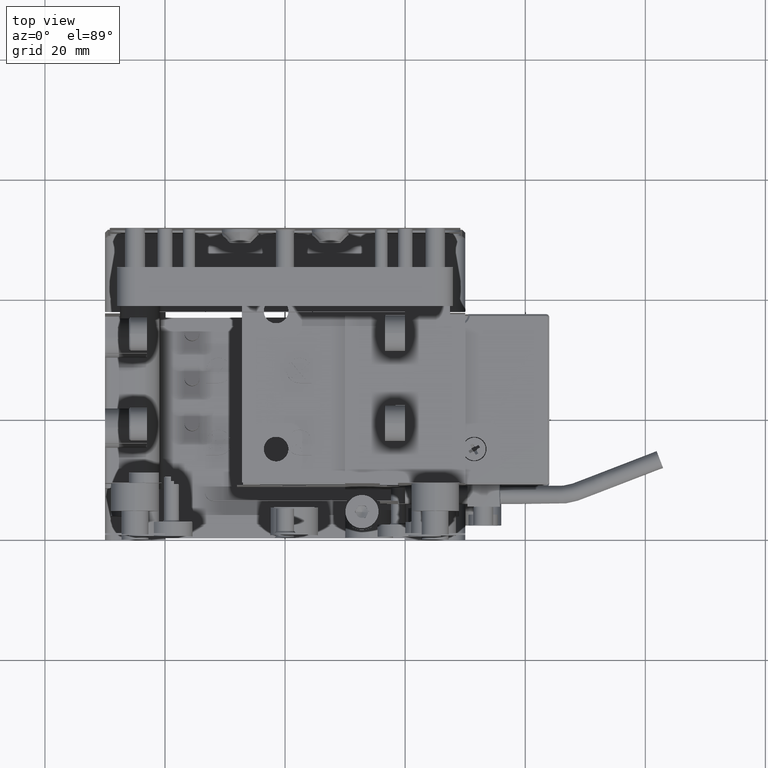
[diagram: clean part render]
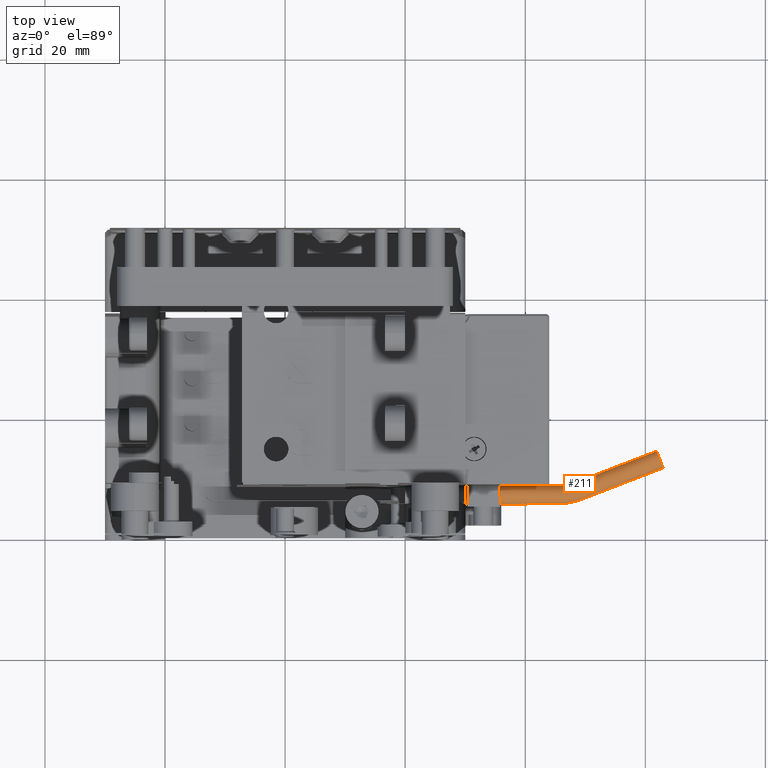
[diagram: same view with one face highlighted and labeled with its STEP entity id]
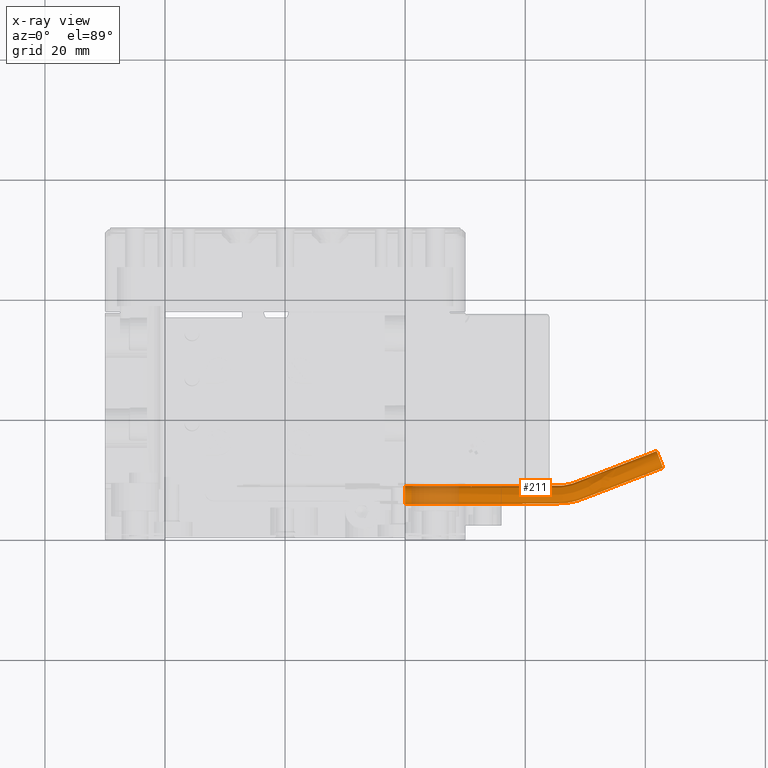
[diagram: x-ray of the same camera — body ghosted, the highlighted face saturated]
A machine part, top view. The second image highlights one B-rep face of the part: STEP entity #211.
The next image is the same camera in x-ray: the body ghosted, the highlighted face saturated — about 18% of this face is hidden behind the body in this view.
In plain terms, the highlighted face is a freeform B-spline surface patch.
Its self-contained STEP definition (entity closure, byte-faithful):
#32 = CARTESIAN_POINT ( 'NONE',  ( 45.89832903586619750, 8.524043819094702101, 0.9999999999999956701 ) ) ;
#152 = CARTESIAN_POINT ( 'NONE',  ( 45.59944284941241932, 5.504068486166733720, -0.5000000000000072164 ) ) ;
#162 = CARTESIAN_POINT ( 'NONE',  ( 20.00000000000000000, 8.500000000000000000, -6.454906054109699198E-15 ) ) ;
#189 = CARTESIAN_POINT ( 'NONE',  ( 52.82997333466650502, 10.81696650263616988, 0.4999999999999946154 ) ) ;
#211 = ADVANCED_FACE ( 'NONE', ( #27757 ), #15140, .T. ) ;
#291 = CARTESIAN_POINT ( 'NONE',  ( 49.95449875497268977, 6.490504950002689455, -3.500000000000013323 ) ) ;
#307 = CARTESIAN_POINT ( 'NONE',  ( 47.00623095837271848, 5.629985409827232168, 0.9999999999999922284 ) ) ;
#330 = CARTESIAN_POINT ( 'NONE',  ( 47.69156534444965700, 8.858287637270828796, 0.9999999999999956701 ) ) ;
#431 = CARTESIAN_POINT ( 'NONE',  ( 44.72028839172087800, 8.500000000000001776, -3.500000000000013323 ) ) ;
#448 = CARTESIAN_POINT ( 'NONE',  ( 44.96354656154173313, 5.499992439274352662, 0.9999999999999922284 ) ) ;
#468 = CARTESIAN_POINT ( 'NONE',  ( 60.69295698429443320, 10.63769814042804462, 3.999999999999998224 ) ) ;
#575 = CARTESIAN_POINT ( 'NONE',  ( 45.59944284941241932, 5.504068486166732832, -3.500000000000013323 ) ) ;
#620 = CARTESIAN_POINT ( 'NONE',  ( 39.98661614649807916, 5.499999999999998224, 3.999999999999998224 ) ) ;
#653 = CARTESIAN_POINT ( 'NONE',  ( 44.72028839172088510, 8.500000000000001776, -0.5000000000000073275 ) ) ;
#728 = CARTESIAN_POINT ( 'NONE',  ( 48.04493642025303757, 5.840156282147153100, -3.500000000000013323 ) ) ;
#738 = EDGE_CURVE ( 'NONE', #2593, #14601, #25777, .T. ) ;
#765 = CARTESIAN_POINT ( 'NONE',  ( 48.72339718655639729, 6.036850528279720685, 3.999999999999998224 ) ) ;
#781 = CARTESIAN_POINT ( 'NONE',  ( 53.96033735880409665, 11.25351315425969467, -0.5000000000000073275 ) ) ;
#794 = CARTESIAN_POINT ( 'NONE',  ( 47.31484482571450201, 8.751419860718115729, -0.5000000000000073275 ) ) ;
#868 = CARTESIAN_POINT ( 'NONE',  ( 62.95368503257471104, 11.51079144367711571, -3.500000000000013323 ) ) ;
#903 = CARTESIAN_POINT ( 'NONE',  ( 19.99999999999999645, 5.499999999999998224, 3.999999999999998224 ) ) ;
#1012 = CARTESIAN_POINT ( 'NONE',  ( 45.89832903586619750, 8.524043819094769603, -0.5000000000000073275 ) ) ;
#1054 = CARTESIAN_POINT ( 'NONE',  ( 52.21522680325105625, 7.363598253250748904, 3.999999999999998224 ) ) ;
#1091 = CARTESIAN_POINT ( 'NONE',  ( 20.00000000000000000, 8.500000000000001776, -0.5000000000000073275 ) ) ;
#1152 =( BOUNDED_CURVE ( )  B_SPLINE_CURVE ( 3, ( #7308, #27170, #9366, #2708 ),
 .UNSPECIFIED., .F., .F. ) 
 B_SPLINE_CURVE_WITH_KNOTS ( ( 4, 4 ),
 ( 0.000000000000000000, 0.004688723123050394202 ),
 .UNSPECIFIED. ) 
 CURVE ( )  GEOMETRIC_REPRESENTATION_ITEM ( )  RATIONAL_B_SPLINE_CURVE ( ( 1.000000000000000000, 0.3333333333333355908, 0.3333333333333334259, 0.9999999999999977796 ) ) 
 REPRESENTATION_ITEM ( '' )  );
#1172 = CARTESIAN_POINT ( 'NONE',  ( 34.72698031847281896, 8.500000000000001776, -0.5000000000000073275 ) ) ;
#1208 = CARTESIAN_POINT ( 'NONE',  ( 45.41133325059357162, 5.500004414964057453, 0.4999999999999946709 ) ) ;
#1223 = CARTESIAN_POINT ( 'NONE',  ( 49.43888126224798185, 9.507326547765154956, -0.5000000000000073275 ) ) ;
#1237 = CARTESIAN_POINT ( 'NONE',  ( 45.38829865483733528, 8.500003263234480855, -6.288372600415925717E-15 ) ) ;
#1271 = VERTEX_POINT ( 'NONE', #20199 ) ;
#1309 = CARTESIAN_POINT ( 'NONE',  ( 47.31484482571450201, 8.751419860718115729, -0.5000000000000073275 ) ) ;
#1344 = CARTESIAN_POINT ( 'NONE',  ( 52.21522680325105625, 7.363598253250744463, 0.4999999999999946709 ) ) ;
#1373 = CARTESIAN_POINT ( 'NONE',  ( 43.93134301751700121, 8.500000000000000000, -6.288372600415925717E-15 ) ) ;
#1446 = CARTESIAN_POINT ( 'NONE',  ( 47.81631582689600179, 8.896802564380710265, -0.5000000000000073275 ) ) ;
#1463 = EDGE_CURVE ( 'NONE', #20074, #21928, #1152, .T. ) ;
#1487 = CARTESIAN_POINT ( 'NONE',  ( 45.59944284941241932, 5.504068486166735497, 0.4999999999999946709 ) ) ;
#1524 = CARTESIAN_POINT ( 'NONE',  ( 52.82997333466650502, 10.81696650263616988, -0.5000000000000073275 ) ) ;
#1648 = CARTESIAN_POINT ( 'NONE',  ( 43.14239764331280469, 5.499999999999998224, 0.4999999999999946709 ) ) ;
#1679 = CARTESIAN_POINT ( 'NONE',  ( 48.17600789856354737, 9.019608279666503137, -6.288372600415925717E-15 ) ) ;
#1781 = CARTESIAN_POINT ( 'NONE',  ( 50.51968076704275035, 6.708778275814959002, -5.999252021086458131E-15 ) ) ;
#1810 = CARTESIAN_POINT ( 'NONE',  ( 49.72147226828446520, 9.616463210671817308, -6.288372600415925717E-15 ) ) ;
#1924 = CARTESIAN_POINT ( 'NONE',  ( 45.95225457304618999, 5.520333389173234906, -0.5000000000000072164 ) ) ;
#1957 = CARTESIAN_POINT ( 'NONE',  ( 61.87288552777995676, 14.30933971562730811, 0.9999999999999956701 ) ) ;
#2075 = CARTESIAN_POINT ( 'NONE',  ( 48.72339718655634755, 6.036850528279717132, -5.999252021086458131E-15 ) ) ;
#2112 = CARTESIAN_POINT ( 'NONE',  ( 51.13442729845628776, 10.16214652520093864, 0.4999999999999946154 ) ) ;
#2220 = CARTESIAN_POINT ( 'NONE',  ( 48.04493642025303046, 5.840156282148086575, -5.999252021086458131E-15 ) ) ;
#2236 = CARTESIAN_POINT ( 'NONE',  ( 62.95368503257470394, 11.51079144367711926, 0.9999999999999965583 ) ) ;
#2256 = CARTESIAN_POINT ( 'NONE',  ( 47.81631582689600179, 8.896802564380708489, 0.4999999999999946154 ) ) ;
#2356 = CARTESIAN_POINT ( 'NONE',  ( 46.12847388104616186, 5.532529872893049649, -5.999252021086458131E-15 ) ) ;
#2396 = CARTESIAN_POINT ( 'NONE',  ( 28.41541732483930360, 8.500000000000000000, 0.9999999999999956701 ) ) ;
#2522 = CARTESIAN_POINT ( 'NONE',  ( 41.03854331210231265, 5.499999999999995559, -3.500000000000013323 ) ) ;
#2559 = CARTESIAN_POINT ( 'NONE',  ( 50.56924528638327132, 9.943873199387068595, 0.4999999999999946154 ) ) ;
#2593 = VERTEX_POINT ( 'NONE', #20775 ) ;
#2660 = CARTESIAN_POINT ( 'NONE',  ( 53.91077283946127352, 8.018418230685975701, -0.5000000000000072164 ) ) ;
#2678 = CARTESIAN_POINT ( 'NONE',  ( 49.05837709942954916, 6.148784068275375603, 0.9999999999999922284 ) ) ;
#2699 = CARTESIAN_POINT ( 'NONE',  ( 57.35142943122453119, 12.56315310913330663, 3.999999999999998224 ) ) ;
#2708 = CARTESIAN_POINT ( 'NONE',  ( 62.95368503257470394, 11.51079144367711926, 0.9999999999999965583 ) ) ;
#2724 = CARTESIAN_POINT ( 'NONE',  ( 42.61643406051070571, 8.500000000000001776, -0.5000000000000073275 ) ) ;
#2801 = CARTESIAN_POINT ( 'NONE',  ( 19.99999999999999645, 8.500000000000001776, -3.500000000000013323 ) ) ;
#2837 = CARTESIAN_POINT ( 'NONE',  ( 42.61643406051069860, 5.499999999999998224, 3.999999999999998224 ) ) ;
#2865 = CARTESIAN_POINT ( 'NONE',  ( 48.06390967554056459, 8.979536050464320240, -0.5000000000000073275 ) ) ;
#2953 = CARTESIAN_POINT ( 'NONE',  ( 39.98661614649807916, 5.499999999999995559, -3.500000000000013323 ) ) ;
#2998 = CARTESIAN_POINT ( 'NONE',  ( 43.93134301751700832, 5.499999999999998224, 3.999999999999998224 ) ) ;
#3016 = CARTESIAN_POINT ( 'NONE',  ( 45.00299382692002581, 8.499994411637157299, -0.5000000000000073275 ) ) ;
#3031 = CARTESIAN_POINT ( 'NONE',  ( 45.38829865483733528, 8.500003263234548356, -0.5000000000000073275 ) ) ;
#3108 = CARTESIAN_POINT ( 'NONE',  ( 48.55461712207012681, 5.984742097484493151, -3.500000000000013323 ) ) ;
#3145 = CARTESIAN_POINT ( 'NONE',  ( 46.65601865603361631, 5.581273961716827436, 3.999999999999998224 ) ) ;
#3158 = CARTESIAN_POINT ( 'NONE',  ( 45.89832903586619750, 8.524043819094769603, -0.5000000000000073275 ) ) ;
#3171 = CARTESIAN_POINT ( 'NONE',  ( 47.06040327755245301, 8.691750367265436594, -0.5000000000000073275 ) ) ;
#3240 = CARTESIAN_POINT ( 'NONE',  ( 36.83083464968132859, 8.500000000000001776, -0.5000000000000073275 ) ) ;
#3273 = CARTESIAN_POINT ( 'NONE',  ( 50.51968076704275035, 6.708778275814962555, 3.999999999999998224 ) ) ;
#3290 = CARTESIAN_POINT ( 'NONE',  ( 57.35142943122452408, 12.56315310913330663, -0.5000000000000073275 ) ) ;
#3380 = CARTESIAN_POINT ( 'NONE',  ( 57.35142943122452408, 12.56315310913330663, -0.5000000000000073275 ) ) ;
#3422 = CARTESIAN_POINT ( 'NONE',  ( 44.72028839172088510, 5.499999999999998224, 0.9999999999999954481 ) ) ;
#3458 = CARTESIAN_POINT ( 'NONE',  ( 51.13442729845628776, 10.16214652520093864, -6.288372600415925717E-15 ) ) ;
#3462 = CARTESIAN_POINT ( 'NONE',  ( 61.87288552777994255, 14.30933971562730456, 0.9999999999999956701 ) ) ;
#3575 = CARTESIAN_POINT ( 'NONE',  ( 50.80227177307923370, 6.817914938721623130, 0.4999999999999946709 ) ) ;
#3587 = CARTESIAN_POINT ( 'NONE',  ( 46.54710600606412640, 8.596076172481097899, -0.5000000000000073275 ) ) ;
#3600 = CARTESIAN_POINT ( 'NONE',  ( 61.87288552777995676, 14.30933971562731166, -0.5000000000000073275 ) ) ;
#3672 = CARTESIAN_POINT ( 'NONE',  ( 57.35142943122453119, 12.56315310913330663, -3.500000000000013323 ) ) ;
#3709 = CARTESIAN_POINT ( 'NONE',  ( 46.12847388104616186, 5.532529872893079848, 0.9999999999999954481 ) ) ;
#3742 = CARTESIAN_POINT ( 'NONE',  ( 47.31484482571450201, 8.751419860718115729, 0.4999999999999946154 ) ) ;
#3861 = CARTESIAN_POINT ( 'NONE',  ( 45.41133325059357162, 5.500004414964057453, 0.9999999999999954481 ) ) ;
#3895 = CARTESIAN_POINT ( 'NONE',  ( 34.72698031847281896, 8.500000000000000000, -6.288372600415925717E-15 ) ) ;
#4018 = CARTESIAN_POINT ( 'NONE',  ( 46.12847388104616186, 5.532529872893083400, 0.4999999999999946709 ) ) ;
#4051 = CARTESIAN_POINT ( 'NONE',  ( 43.14239764331280469, 8.500000000000000000, 0.4999999999999946154 ) ) ;
#4151 = CARTESIAN_POINT ( 'NONE',  ( 44.96354656154173313, 5.499992439274351774, -5.999252021086458131E-15 ) ) ;
#4182 = CARTESIAN_POINT ( 'NONE',  ( 48.87369925017790706, 9.289053221952887185, 0.4999999999999946154 ) ) ;
#4289 = CARTESIAN_POINT ( 'NONE',  ( 43.93134301751700121, 5.499999999999997335, -5.999252021086458131E-15 ) ) ;
#4324 = CARTESIAN_POINT ( 'NONE',  ( 49.72147226828446520, 9.616463210671817308, 0.4999999999999946154 ) ) ;
#4451 = CARTESIAN_POINT ( 'NONE',  ( 44.96354656154173313, 5.499992439274350886, -0.5000000000000072164 ) ) ;
#4465 = CARTESIAN_POINT ( 'NONE',  ( 51.65004479117803982, 7.145324927436870865, 0.9999999999999922284 ) ) ;
#4485 = CARTESIAN_POINT ( 'NONE',  ( 48.56991622770004113, 9.171725300353227084, 0.4999999999999946154 ) ) ;
#4588 = CARTESIAN_POINT ( 'NONE',  ( 58.43222893601929258, 9.764604837183110675, -5.999252021086458131E-15 ) ) ;
#4624 = CARTESIAN_POINT ( 'NONE',  ( 34.72698031847281896, 8.500000000000000000, 0.9999999999999956701 ) ) ;
#4670 = CARTESIAN_POINT ( 'NONE',  ( 19.99999999999999645, 5.500000000000007994, 3.999999999999997335 ) ) ;
#4729 = CARTESIAN_POINT ( 'NONE',  ( 52.21522680325105625, 7.363598253250743575, -5.999252021086458131E-15 ) ) ;
#4768 = CARTESIAN_POINT ( 'NONE',  ( 57.35142943122452408, 12.56315310913330308, 0.9999999999999956701 ) ) ;
#4886 = CARTESIAN_POINT ( 'NONE',  ( 50.51968076704275035, 6.708778275814959891, -3.500000000000013323 ) ) ;
#4905 = CARTESIAN_POINT ( 'NONE',  ( 49.95449875497265424, 6.490504950002691231, 0.9999999999999922284 ) ) ;
#4924 = CARTESIAN_POINT ( 'NONE',  ( 48.17600789856168575, 9.019608279666940120, 3.999999999999998224 ) ) ;
#5029 = CARTESIAN_POINT ( 'NONE',  ( 45.89832903586620461, 8.524043819094536900, -3.500000000000013323 ) ) ;
#5062 = CARTESIAN_POINT ( 'NONE',  ( 34.72698031847281896, 5.499999999999998224, 0.9999999999999954481 ) ) ;
#5088 = CARTESIAN_POINT ( 'NONE',  ( 46.28825343477024745, 8.560072058660457728, -0.5000000000000073275 ) ) ;
#5161 = CARTESIAN_POINT ( 'NONE',  ( 50.80227177307924080, 6.817914938721621354, -3.500000000000013323 ) ) ;
#5198 = CARTESIAN_POINT ( 'NONE',  ( 59.61215747949965760, 13.43624641237823347, 3.999999999999998224 ) ) ;
#5317 = CARTESIAN_POINT ( 'NONE',  ( 44.96354656154172602, 5.499992439274349998, -3.500000000000013323 ) ) ;
#5363 = CARTESIAN_POINT ( 'NONE',  ( 44.96354656154172602, 5.499992439274353551, 3.999999999999998224 ) ) ;
#5380 = CARTESIAN_POINT ( 'NONE',  ( 43.14239764331280469, 8.500000000000001776, -0.5000000000000073275 ) ) ;
#5394 = CARTESIAN_POINT ( 'NONE',  ( 49.43888126224798185, 9.507326547765154956, -0.5000000000000073275 ) ) ;
#5468 = CARTESIAN_POINT ( 'NONE',  ( 49.95449875497267556, 6.490504950002689455, -0.5000000000000072164 ) ) ;
#5502 = CARTESIAN_POINT ( 'NONE',  ( 49.95449875497268977, 6.490504950002693896, 3.999999999999998224 ) ) ;
#5600 = CARTESIAN_POINT ( 'NONE',  ( 49.43888126224798185, 9.507326547765154956, -0.5000000000000073275 ) ) ;
#5638 = CARTESIAN_POINT ( 'NONE',  ( 62.95368503257471815, 11.51079144367711748, 0.9999999999999954481 ) ) ;
#5654 = CARTESIAN_POINT ( 'NONE',  ( 48.87369925017790706, 9.289053221952887185, -0.5000000000000073275 ) ) ;
#5667 = CARTESIAN_POINT ( 'NONE',  ( 24.20770866243935515, 8.500000000000000000, -6.288372600415925717E-15 ) ) ;
#5740 = CARTESIAN_POINT ( 'NONE',  ( 44.72028839172088510, 8.500000000000001776, -0.5000000000000073275 ) ) ;
#5781 = CARTESIAN_POINT ( 'NONE',  ( 47.00623095837273979, 5.629985409827232168, 0.4999999999999946709 ) ) ;
#5800 = CARTESIAN_POINT ( 'NONE',  ( 48.56991622770057404, 9.171725300352965959, -0.5000000000000073275 ) ) ;
#5819 = CARTESIAN_POINT ( 'NONE',  ( 41.03854331210231976, 8.500000000000000000, 0.4999999999999946154 ) ) ;
#5896 = CARTESIAN_POINT ( 'NONE',  ( 39.98661614649808627, 8.500000000000001776, -0.5000000000000073275 ) ) ;
#5935 = CARTESIAN_POINT ( 'NONE',  ( 47.00623095837273979, 5.629985409827232168, 0.9999999999999954481 ) ) ;
#5962 = CARTESIAN_POINT ( 'NONE',  ( 42.61643406051070571, 8.500000000000000000, 0.4999999999999946154 ) ) ;
#6039 = CARTESIAN_POINT ( 'NONE',  ( 28.41541732483930360, 8.500000000000001776, -0.5000000000000073275 ) ) ;
#6077 = CARTESIAN_POINT ( 'NONE',  ( 48.04493642025303046, 5.840156282148242006, 0.4999999999999946709 ) ) ;
#6082 = EDGE_CURVE ( 'NONE', #8804, #20074, #12622, .T. ) ;
#6107 = CARTESIAN_POINT ( 'NONE',  ( 53.96033735880409665, 11.25351315425969467, -0.5000000000000073275 ) ) ;
#6227 = CARTESIAN_POINT ( 'NONE',  ( 45.95225457304618999, 5.520333389173236682, 0.9999999999999954481 ) ) ;
#6260 = CARTESIAN_POINT ( 'NONE',  ( 57.35142943122452408, 12.56315310913330663, -6.288372600415925717E-15 ) ) ;
#6378 = CARTESIAN_POINT ( 'NONE',  ( 55.04113686359886515, 8.454964882309498719, -5.999252021086458131E-15 ) ) ;
#6409 = CARTESIAN_POINT ( 'NONE',  ( 19.99999999999999645, 8.500000000000000000, 0.9999999999999956701 ) ) ;
#6508 = CARTESIAN_POINT ( 'NONE',  ( 43.14239764331280469, 5.499999999999997335, -5.999252021086458131E-15 ) ) ;
#6544 = CARTESIAN_POINT ( 'NONE',  ( 43.93134301751700832, 8.499999999999998224, 3.999999999999998224 ) ) ;
#6655 = CARTESIAN_POINT ( 'NONE',  ( 53.91077283946127352, 8.018418230685975701, -5.999252021086458131E-15 ) ) ;
#6688 = CARTESIAN_POINT ( 'NONE',  ( 44.72028839172087800, 8.499999999999998224, 3.999999999999998224 ) ) ;
#6819 = CARTESIAN_POINT ( 'NONE',  ( 47.70069197273902262, 5.759426967476883874, -5.999252021086458131E-15 ) ) ;
#6835 = CARTESIAN_POINT ( 'NONE',  ( 48.04493642025303046, 5.840156282148218025, 0.9999999999999922284 ) ) ;
#6854 = CARTESIAN_POINT ( 'NONE',  ( 47.81631582689625759, 8.896802564380708489, 0.9999999999999956701 ) ) ;
#6958 = CARTESIAN_POINT ( 'NONE',  ( 51.65004479117803982, 7.145324927436871754, -5.999252021086458131E-15 ) ) ;
#6973 = CARTESIAN_POINT ( 'NONE',  ( 45.95225457304618999, 5.520333389173236682, 0.9999999999999922284 ) ) ;
#6993 = CARTESIAN_POINT ( 'NONE',  ( 41.03854331210231265, 8.500000000000000000, 0.9999999999999956701 ) ) ;
#7097 = CARTESIAN_POINT ( 'NONE',  ( 46.12847388104616186, 5.532529872893242384, -3.500000000000013323 ) ) ;
#7114 = CARTESIAN_POINT ( 'NONE',  ( 42.61643406051068439, 5.499999999999998224, 0.9999999999999922284 ) ) ;
#7134 = CARTESIAN_POINT ( 'NONE',  ( 53.91077283946127352, 8.018418230685975701, 3.999999999999998224 ) ) ;
#7198 = EDGE_CURVE ( 'NONE', #1271, #21928, #25459, .T. ) ;
#7257 = CARTESIAN_POINT ( 'NONE',  ( 45.76807998212662909, 8.515029026780107202, -3.500000000000013323 ) ) ;
#7275 = CARTESIAN_POINT ( 'NONE',  ( 36.83083464968132148, 5.499999999999998224, 0.9999999999999922284 ) ) ;
#7295 = CARTESIAN_POINT ( 'NONE',  ( 24.20770866243935160, 5.499999999999998224, 0.9999999999999954481 ) ) ;
#7308 = CARTESIAN_POINT ( 'NONE',  ( 61.87288552777996387, 14.30933971562730989, 0.9999999999999956701 ) ) ;
#7396 = CARTESIAN_POINT ( 'NONE',  ( 60.69295698429443320, 10.63769814042803930, -3.500000000000013323 ) ) ;
#7430 = CARTESIAN_POINT ( 'NONE',  ( 44.19432480891807558, 5.499999999999998224, 3.999999999999998224 ) ) ;
#7447 = CARTESIAN_POINT ( 'NONE',  ( 41.03854331210231976, 8.500000000000001776, -0.5000000000000073275 ) ) ;
#7535 = CARTESIAN_POINT ( 'NONE',  ( 44.19432480891807558, 8.500000000000001776, -3.500000000000013323 ) ) ;
#7572 = CARTESIAN_POINT ( 'NONE',  ( 44.72028839172087800, 5.499999999999998224, 3.999999999999998224 ) ) ;
#7588 = CARTESIAN_POINT ( 'NONE',  ( 28.41541732483930360, 8.500000000000001776, -0.5000000000000073275 ) ) ;
#7688 = CARTESIAN_POINT ( 'NONE',  ( 45.00299382692001871, 8.499994411636471625, -3.500000000000013323 ) ) ;
#7734 = CARTESIAN_POINT ( 'NONE',  ( 61.87288552777994965, 14.30933971562730811, 3.999999999999998224 ) ) ;
#7747 = CARTESIAN_POINT ( 'NONE',  ( 51.13442729845628776, 10.16214652520093864, -0.5000000000000073275 ) ) ;
#7836 = CARTESIAN_POINT ( 'NONE',  ( 59.61215747949965760, 13.43624641237823880, -0.5000000000000073275 ) ) ;
#7869 = CARTESIAN_POINT ( 'NONE',  ( 42.61643406051070571, 5.499999999999998224, 0.9999999999999954481 ) ) ;
#7895 = CARTESIAN_POINT ( 'NONE',  ( 45.00299382692002581, 8.499994411637157299, -0.5000000000000073275 ) ) ;
#7967 = CARTESIAN_POINT ( 'NONE',  ( 43.14239764331280469, 8.500000000000001776, -0.5000000000000073275 ) ) ;
#8005 = CARTESIAN_POINT ( 'NONE',  ( 43.14239764331280469, 5.499999999999998224, 0.9999999999999954481 ) ) ;
#8017 = B_SPLINE_CURVE_WITH_KNOTS ( 'NONE', 3,
 ( #18857, #21514, #7588, #9668, #8022, #23447, #7447, #19292, #5380, #16917, #17066, #16474, #3016, #25519, #16629, #28044, #3158, #21210, #3587, #20922, #28192, #12469, #25819, #23585, #14834, #5800, #5654, #1223, #14249, #12031, #7747, #21074, #781, #3290, #12304, #9799 ),
 .UNSPECIFIED., .F., .F.,
 ( 4, 2, 2, 2, 2, 2, 2, 2, 2, 2, 2, 2, 2, 2, 2, 2, 2, 4 ),
 ( 0.000000000000000000, 0.2903698483032294275, 0.4355547724548441413, 0.5081472345306514704, 0.5444434655685551627, 0.5625915810875070644, 0.5807396966064588550, 0.5913369965892992797, 0.6019342965721397043, 0.6231288965378204425, 0.6443234965035011808, 0.6549207964863416054, 0.6655180964691820300, 0.6864232154398581809, 0.7073283344105343318, 0.7491385723518865225, 0.8327590482345910150, 1.000000000000000000 ),
 .UNSPECIFIED. ) ;
#8022 = CARTESIAN_POINT ( 'NONE',  ( 36.83083464968132859, 8.500000000000001776, -0.5000000000000073275 ) ) ;
#8034 = CARTESIAN_POINT ( 'NONE',  ( 50.56924528638327132, 9.943873199387068595, -6.288372600415925717E-15 ) ) ;
#8114 = CARTESIAN_POINT ( 'NONE',  ( 52.82997333466650502, 10.81696650263616988, -0.5000000000000073275 ) ) ;
#8156 = CARTESIAN_POINT ( 'NONE',  ( 44.19432480891807558, 5.499999999999998224, 0.9999999999999954481 ) ) ;
#8196 = CARTESIAN_POINT ( 'NONE',  ( 48.87369925017790706, 9.289053221952887185, -6.288372600415925717E-15 ) ) ;
#8313 = CARTESIAN_POINT ( 'NONE',  ( 28.41541732483930005, 5.499999999999998224, 0.4999999999999946709 ) ) ;
#8339 = CARTESIAN_POINT ( 'NONE',  ( 53.96033735880409665, 11.25351315425969467, -6.288372600415925717E-15 ) ) ;
#8411 = CARTESIAN_POINT ( 'NONE',  ( 42.61643406051070571, 8.500000000000001776, -0.5000000000000073275 ) ) ;
#8447 = CARTESIAN_POINT ( 'NONE',  ( 43.93134301751700121, 5.499999999999998224, 0.9999999999999954481 ) ) ;
#8478 = CARTESIAN_POINT ( 'NONE',  ( 45.89832903586619750, 8.524043819094767827, 0.4999999999999946154 ) ) ;
#8592 = CARTESIAN_POINT ( 'NONE',  ( 36.83083464968132148, 5.499999999999996447, -0.5000000000000072164 ) ) ;
#8632 = CARTESIAN_POINT ( 'NONE',  ( 45.00299382692002581, 8.499994411637269209, -6.288372600415925717E-15 ) ) ;
#8749 = CARTESIAN_POINT ( 'NONE',  ( 47.70069197273911499, 5.759426967476882098, -0.5000000000000072164 ) ) ;
#8782 = CARTESIAN_POINT ( 'NONE',  ( 43.93134301751700121, 8.500000000000000000, 0.9999999999999956701 ) ) ;
#8804 = VERTEX_POINT ( 'NONE', #18904 ) ;
#8879 = CARTESIAN_POINT ( 'NONE',  ( 39.98661614649807916, 5.499999999999997335, -5.999252021086458131E-15 ) ) ;
#8897 = CARTESIAN_POINT ( 'NONE',  ( 49.69310519834546369, 6.389545407024266765, 0.9999999999999922284 ) ) ;
#8916 = CARTESIAN_POINT ( 'NONE',  ( 28.41541732483931071, 8.499999999999998224, 3.999999999999998224 ) ) ;
#9026 = CARTESIAN_POINT ( 'NONE',  ( 44.19432480891807558, 5.499999999999996447, -0.5000000000000072164 ) ) ;
#9042 = CARTESIAN_POINT ( 'NONE',  ( 48.72339718655639729, 6.036850528279652295, 0.9999999999999922284 ) ) ;
#9064 = CARTESIAN_POINT ( 'NONE',  ( 48.17600789856327737, 9.019608279666542217, 0.9999999999999956701 ) ) ;
#9186 = CARTESIAN_POINT ( 'NONE',  ( 19.99999999999999645, 5.499999999999997335, -5.999252021086458131E-15 ) ) ;
#9196 = CARTESIAN_POINT ( 'NONE',  ( 20.00000000000000000, 8.500000000000000000, 0.4999999999999943934 ) ) ;
#9203 = CARTESIAN_POINT ( 'NONE',  ( 19.99999999999999645, 5.499999999999998224, 0.9999999999999954481 ) ) ;
#9222 = CARTESIAN_POINT ( 'NONE',  ( 53.96033735880409665, 11.25351315425969467, 0.4999999999999946154 ) ) ;
#9321 = CARTESIAN_POINT ( 'NONE',  ( 42.61643406051069860, 5.499999999999995559, -3.500000000000013323 ) ) ;
#9334 = CARTESIAN_POINT ( 'NONE',  ( 43.14239764331278337, 5.499999999999998224, 0.9999999999999922284 ) ) ;
#9356 = CARTESIAN_POINT ( 'NONE',  ( 48.17600789856354737, 9.019608279666476491, 0.4999999999999946154 ) ) ;
#9366 = CARTESIAN_POINT ( 'NONE',  ( 62.95368503257459025, 11.51079144367707130, 3.999999999999997335 ) ) ;
#9458 = CARTESIAN_POINT ( 'NONE',  ( 43.14239764331281890, 8.500000000000001776, -3.500000000000013323 ) ) ;
#9473 = CARTESIAN_POINT ( 'NONE',  ( 47.70069197273911499, 5.759426967476881210, 0.9999999999999922284 ) ) ;
#9493 = CARTESIAN_POINT ( 'NONE',  ( 62.95368503257471104, 11.51079144367712104, 3.999999999999998224 ) ) ;
#9524 = CARTESIAN_POINT ( 'NONE',  ( 43.93134301751700121, 8.500000000000001776, -0.5000000000000073275 ) ) ;
#9612 = CARTESIAN_POINT ( 'NONE',  ( 46.65601865603361631, 5.581273961716423315, -3.500000000000013323 ) ) ;
#9649 = CARTESIAN_POINT ( 'NONE',  ( 46.28825343477026166, 8.560072058661384986, 3.999999999999998224 ) ) ;
#9668 = CARTESIAN_POINT ( 'NONE',  ( 34.72698031847281896, 8.500000000000001776, -0.5000000000000073275 ) ) ;
#9741 = ORIENTED_EDGE ( 'NONE', *, *, #6082, .F. ) ;
#9748 = CARTESIAN_POINT ( 'NONE',  ( 43.93134301751700832, 8.500000000000001776, -3.500000000000013323 ) ) ;
#9782 = CARTESIAN_POINT ( 'NONE',  ( 49.05837709942954916, 6.148784068275311654, 3.999999999999998224 ) ) ;
#9799 = CARTESIAN_POINT ( 'NONE',  ( 61.87288552777994965, 14.30933971562730989, -0.5000000000000073275 ) ) ;
#9813 = CARTESIAN_POINT ( 'NONE',  ( 47.81631582689600179, 8.896802564380710265, -0.5000000000000073275 ) ) ;
#9891 = CARTESIAN_POINT ( 'NONE',  ( 39.98661614649807916, 8.500000000000001776, -3.500000000000013323 ) ) ;
#9927 = CARTESIAN_POINT ( 'NONE',  ( 47.69156534445126283, 8.858287637270828796, 3.999999999999998224 ) ) ;
#10043 = CARTESIAN_POINT ( 'NONE',  ( 44.19432480891807558, 8.500000000000001776, -0.5000000000000073275 ) ) ;
#10086 = CARTESIAN_POINT ( 'NONE',  ( 49.95449875497267556, 6.490504950002691231, 0.4999999999999946709 ) ) ;
#10111 = CARTESIAN_POINT ( 'NONE',  ( 28.41541732483930360, 8.500000000000001776, -0.5000000000000073275 ) ) ;
#10120 = EDGE_CURVE ( 'NONE', #2593, #8804, #8017, .T. ) ;
#10186 = CARTESIAN_POINT ( 'NONE',  ( 47.31484482571264039, 8.751419860718115729, -3.500000000000013323 ) ) ;
#10221 = CARTESIAN_POINT ( 'NONE',  ( 24.20770866243935160, 5.499999999999998224, 0.4999999999999946709 ) ) ;
#10250 = CARTESIAN_POINT ( 'NONE',  ( 46.28825343477024745, 8.560072058660455951, 0.4999999999999946154 ) ) ;
#10321 = CARTESIAN_POINT ( 'NONE',  ( 50.56924528638327132, 9.943873199387068595, -0.5000000000000073275 ) ) ;
#10362 = CARTESIAN_POINT ( 'NONE',  ( 53.91077283946127352, 8.018418230685977477, 0.4999999999999946709 ) ) ;
#10389 = CARTESIAN_POINT ( 'NONE',  ( 48.56991622770004113, 9.171725300353172017, -6.288372600415925717E-15 ) ) ;
#10473 = CARTESIAN_POINT ( 'NONE',  ( 46.28825343477024745, 8.560072058660457728, -0.5000000000000073275 ) ) ;
#10522 = CARTESIAN_POINT ( 'NONE',  ( 50.80227177307923370, 6.817914938721623130, 0.9999999999999954481 ) ) ;
#10562 = CARTESIAN_POINT ( 'NONE',  ( 41.03854331210231976, 8.500000000000000000, -6.288372600415925717E-15 ) ) ;
#10671 = CARTESIAN_POINT ( 'NONE',  ( 44.72028839172088510, 5.499999999999998224, 0.4999999999999946709 ) ) ;
#10698 = CARTESIAN_POINT ( 'NONE',  ( 43.93134301751700121, 8.500000000000000000, 0.4999999999999946154 ) ) ;
#10806 = CARTESIAN_POINT ( 'NONE',  ( 60.69295698429444030, 10.63769814042804107, 0.4999999999999946709 ) ) ;
#10837 = CARTESIAN_POINT ( 'NONE',  ( 34.72698031847281896, 8.500000000000000000, 0.4999999999999946154 ) ) ;
#10949 = CARTESIAN_POINT ( 'NONE',  ( 47.00623095837273979, 5.629985409827231280, -0.5000000000000072164 ) ) ;
#10986 = CARTESIAN_POINT ( 'NONE',  ( 45.76807998212664330, 8.515029026780105426, 0.9999999999999956701 ) ) ;
#11101 = CARTESIAN_POINT ( 'NONE',  ( 49.69310519834548501, 6.389545407024003865, -0.5000000000000072164 ) ) ;
#11137 = CARTESIAN_POINT ( 'NONE',  ( 49.72147226828446520, 9.616463210671813755, 0.9999999999999956701 ) ) ;
#11239 = CARTESIAN_POINT ( 'NONE',  ( 49.95449875497267556, 6.490504950002689455, -5.999252021086458131E-15 ) ) ;
#11277 = CARTESIAN_POINT ( 'NONE',  ( 44.19432480891807558, 8.500000000000000000, 0.9999999999999956701 ) ) ;
#11325 = CARTESIAN_POINT ( 'NONE',  ( 19.99999999999999645, 8.500000000000000000, 0.9999999999999956701 ) ) ;
#11384 = CARTESIAN_POINT ( 'NONE',  ( 49.69310519834548501, 6.389545407023983437, -5.999252021086458131E-15 ) ) ;
#11427 = CARTESIAN_POINT ( 'NONE',  ( 48.06390967554029459, 8.979536050464316688, 0.9999999999999956701 ) ) ;
#11533 = ORIENTED_EDGE ( 'NONE', *, *, #7198, .T. ) ;
#11552 = CARTESIAN_POINT ( 'NONE',  ( 55.04113686359886515, 8.454964882309498719, -3.500000000000013323 ) ) ;
#11585 = CARTESIAN_POINT ( 'NONE',  ( 42.61643406051069860, 8.499999999999998224, 3.999999999999998224 ) ) ;
#11688 = CARTESIAN_POINT ( 'NONE',  ( 53.91077283946127352, 8.018418230685972148, -3.500000000000013323 ) ) ;
#11704 = CARTESIAN_POINT ( 'NONE',  ( 53.91077283946125220, 8.018418230685977477, 0.9999999999999922284 ) ) ;
#11723 = CARTESIAN_POINT ( 'NONE',  ( 45.95225457304618999, 5.520333389173237570, 3.999999999999998224 ) ) ;
#11826 = CARTESIAN_POINT ( 'NONE',  ( 34.72698031847281896, 8.500000000000001776, -3.500000000000013323 ) ) ;
#11860 = CARTESIAN_POINT ( 'NONE',  ( 47.06040327755620467, 8.691750367265433042, 3.999999999999998224 ) ) ;
#11978 = CARTESIAN_POINT ( 'NONE',  ( 24.20770866243935870, 8.500000000000001776, -3.500000000000013323 ) ) ;
#12014 = CARTESIAN_POINT ( 'NONE',  ( 47.00623095837274690, 5.629985409827233944, 3.999999999999998224 ) ) ;
#12031 = CARTESIAN_POINT ( 'NONE',  ( 50.56924528638327132, 9.943873199387068595, -0.5000000000000073275 ) ) ;
#12044 = CARTESIAN_POINT ( 'NONE',  ( 45.89832903586619750, 8.524043819094769603, -0.5000000000000073275 ) ) ;
#12118 = CARTESIAN_POINT ( 'NONE',  ( 47.00623095837220689, 5.629985409827231280, -3.500000000000013323 ) ) ;
#12156 = CARTESIAN_POINT ( 'NONE',  ( 51.65004479117805403, 7.145324927436876195, 3.999999999999998224 ) ) ;
#12184 = CARTESIAN_POINT ( 'NONE',  ( 50.56924528638327132, 9.943873199387068595, -0.5000000000000073275 ) ) ;
#12257 = CARTESIAN_POINT ( 'NONE',  ( 45.38829865483733528, 8.500003263234548356, -0.5000000000000073275 ) ) ;
#12290 = CARTESIAN_POINT ( 'NONE',  ( 50.80227177307924080, 6.817914938721625795, 3.999999999999998224 ) ) ;
#12304 = CARTESIAN_POINT ( 'NONE',  ( 59.61215747949965760, 13.43624641237823880, -0.5000000000000073275 ) ) ;
#12407 = CARTESIAN_POINT ( 'NONE',  ( 49.72147226828446520, 9.616463210671817308, -0.5000000000000073275 ) ) ;
#12453 = CARTESIAN_POINT ( 'NONE',  ( 49.69310519834548501, 6.389545407024266765, 0.9999999999999954481 ) ) ;
#12469 = CARTESIAN_POINT ( 'NONE',  ( 47.69156534444940121, 8.858287637270830572, -0.5000000000000073275 ) ) ;
#12482 = CARTESIAN_POINT ( 'NONE',  ( 43.14239764331280469, 8.500000000000000000, -6.288372600415925717E-15 ) ) ;
#12590 = CARTESIAN_POINT ( 'NONE',  ( 34.72698031847281896, 5.499999999999998224, 0.4999999999999946709 ) ) ;
#12619 = CARTESIAN_POINT ( 'NONE',  ( 47.69156534444924489, 8.858287637270830572, -6.288372600415925717E-15 ) ) ;
#12622 = LINE ( 'NONE', #3462, #15381 ) ;
#12693 = CARTESIAN_POINT ( 'NONE',  ( 43.93134301751700121, 8.500000000000001776, -0.5000000000000073275 ) ) ;
#12733 = CARTESIAN_POINT ( 'NONE',  ( 60.69295698429444030, 10.63769814042804107, 0.9999999999999954481 ) ) ;
#12761 = CARTESIAN_POINT ( 'NONE',  ( 39.98661614649808627, 8.500000000000000000, -6.288372600415925717E-15 ) ) ;
#12840 = CARTESIAN_POINT ( 'NONE',  ( 52.82997333466649792, 10.81696650263616455, -3.500000000000013323 ) ) ;
#12886 = CARTESIAN_POINT ( 'NONE',  ( 47.70069197273911499, 5.759426967476883874, 0.9999999999999954481 ) ) ;
#12925 = CARTESIAN_POINT ( 'NONE',  ( 45.00299382692002581, 8.499994411637384673, 0.4999999999999946154 ) ) ;
#13032 = CARTESIAN_POINT ( 'NONE',  ( 49.23531917904531241, 6.212762488877703326, 0.4999999999999946709 ) ) ;
#13062 = CARTESIAN_POINT ( 'NONE',  ( 45.50730609944191229, 8.503007141949444403, -6.288372600415925717E-15 ) ) ;
#13071 =( BOUNDED_CURVE ( )  B_SPLINE_CURVE ( 3, ( #11325, #26897, #4670, #15793 ),
 .UNSPECIFIED., .F., .F. ) 
 B_SPLINE_CURVE_WITH_KNOTS ( ( 4, 4 ),
 ( 0.1207265035026119926, 0.4999999999999985012 ),
 .UNSPECIFIED. ) 
 CURVE ( )  GEOMETRIC_REPRESENTATION_ITEM ( )  RATIONAL_B_SPLINE_CURVE ( ( 1.000000000000000000, 0.3333333333333355908, 0.3333333333333334259, 0.9999999999999977796 ) ) 
 REPRESENTATION_ITEM ( '' )  );
#13168 = CARTESIAN_POINT ( 'NONE',  ( 45.41133325059357162, 5.500004414964055677, -0.5000000000000072164 ) ) ;
#13199 = CARTESIAN_POINT ( 'NONE',  ( 48.56991622770057404, 9.171725300353095633, 0.9999999999999956701 ) ) ;
#13312 = CARTESIAN_POINT ( 'NONE',  ( 41.03854331210231265, 5.499999999999997335, -5.999252021086458131E-15 ) ) ;
#13354 = CARTESIAN_POINT ( 'NONE',  ( 24.20770866243935160, 8.500000000000000000, 0.9999999999999956701 ) ) ;
#13469 = CARTESIAN_POINT ( 'NONE',  ( 48.55461712207012681, 5.984742097484097023, -0.5000000000000072164 ) ) ;
#13487 = CARTESIAN_POINT ( 'NONE',  ( 50.80227177307921238, 6.817914938721620466, 0.9999999999999922284 ) ) ;
#13508 = CARTESIAN_POINT ( 'NONE',  ( 43.14239764331280469, 8.500000000000000000, 0.9999999999999956701 ) ) ;
#13582 = CARTESIAN_POINT ( 'NONE',  ( 61.87288552777996387, 14.30933971562730989, 0.9999999999999956701 ) ) ;
#13610 = CARTESIAN_POINT ( 'NONE',  ( 34.72698031847281896, 5.499999999999996447, -0.5000000000000072164 ) ) ;
#13645 = CARTESIAN_POINT ( 'NONE',  ( 49.43888126224798185, 9.507326547765151403, 0.9999999999999956701 ) ) ;
#13751 = CARTESIAN_POINT ( 'NONE',  ( 45.59944284941241932, 5.504068486166734608, -5.999252021086458131E-15 ) ) ;
#13796 = CARTESIAN_POINT ( 'NONE',  ( 24.20770866243935870, 8.499999999999998224, 3.999999999999998224 ) ) ;
#13920 = CARTESIAN_POINT ( 'NONE',  ( 50.80227177307923370, 6.817914938721621354, -0.5000000000000072164 ) ) ;
#13934 = CARTESIAN_POINT ( 'NONE',  ( 28.41541732483930360, 5.499999999999998224, 0.9999999999999922284 ) ) ;
#13953 = CARTESIAN_POINT ( 'NONE',  ( 58.43222893601929258, 9.764604837183114228, 3.999999999999998224 ) ) ;
#14055 = CARTESIAN_POINT ( 'NONE',  ( 19.99999999999999645, 5.499999999999995559, -3.500000000000013323 ) ) ;
#14088 = CARTESIAN_POINT ( 'NONE',  ( 36.83083464968132148, 5.499999999999998224, 0.9999999999999954481 ) ) ;
#14114 = CARTESIAN_POINT ( 'NONE',  ( 46.54710600606412640, 8.596076172481097899, -0.5000000000000073275 ) ) ;
#14188 = CARTESIAN_POINT ( 'NONE',  ( 42.61643406051069860, 8.500000000000001776, -3.500000000000013323 ) ) ;
#14231 = CARTESIAN_POINT ( 'NONE',  ( 45.50730609944190519, 8.503007141949444403, 3.999999999999998224 ) ) ;
#14249 = CARTESIAN_POINT ( 'NONE',  ( 49.72147226828446520, 9.616463210671817308, -0.5000000000000073275 ) ) ;
#14356 = CARTESIAN_POINT ( 'NONE',  ( 36.83083464968130727, 5.499999999999995559, -3.500000000000013323 ) ) ;
#14391 = CARTESIAN_POINT ( 'NONE',  ( 45.76807998212662909, 8.515029026780107202, 3.999999999999998224 ) ) ;
#14396 = ORIENTED_EDGE ( 'NONE', *, *, #1463, .F. ) ;
#14419 = CARTESIAN_POINT ( 'NONE',  ( 49.72147226828446520, 9.616463210671817308, -0.5000000000000073275 ) ) ;
#14491 = CARTESIAN_POINT ( 'NONE',  ( 48.17600789856168575, 9.019608279667240325, -3.500000000000013323 ) ) ;
#14528 = CARTESIAN_POINT ( 'NONE',  ( 48.56991622770372885, 9.171725300352301602, 3.999999999999998224 ) ) ;
#14601 = VERTEX_POINT ( 'NONE', #19633 ) ;
#14628 = CARTESIAN_POINT ( 'NONE',  ( 53.96033735880410376, 11.25351315425969112, -3.500000000000013323 ) ) ;
#14662 = CARTESIAN_POINT ( 'NONE',  ( 46.65601865603361631, 5.581273961716748389, 0.4999999999999946709 ) ) ;
#14692 = CARTESIAN_POINT ( 'NONE',  ( 59.61215747949965760, 13.43624641237823880, -0.5000000000000073275 ) ) ;
#14782 = CARTESIAN_POINT ( 'NONE',  ( 20.00000000000000000, 8.500000000000001776, -0.5000000000000073275 ) ) ;
#14823 = CARTESIAN_POINT ( 'NONE',  ( 48.04493642025303046, 5.840156282148220690, 0.9999999999999954481 ) ) ;
#14834 = CARTESIAN_POINT ( 'NONE',  ( 48.17600789856327737, 9.019608279666607942, -0.5000000000000073275 ) ) ;
#14849 = CARTESIAN_POINT ( 'NONE',  ( 45.50730609944191229, 8.503007141949444403, 0.4999999999999946154 ) ) ;
#14926 = CARTESIAN_POINT ( 'NONE',  ( 48.56991622770057404, 9.171725300352965959, -0.5000000000000073275 ) ) ;
#14962 = CARTESIAN_POINT ( 'NONE',  ( 43.93134301751700121, 5.499999999999998224, 0.4999999999999946709 ) ) ;
#14989 = CARTESIAN_POINT ( 'NONE',  ( 44.72028839172088510, 8.500000000000000000, 0.4999999999999946154 ) ) ;
#15059 = CARTESIAN_POINT ( 'NONE',  ( 41.03854331210231976, 8.500000000000001776, -0.5000000000000073275 ) ) ;
#15100 = CARTESIAN_POINT ( 'NONE',  ( 49.95449875497267556, 6.490504950002691231, 0.9999999999999954481 ) ) ;
#15133 = CARTESIAN_POINT ( 'NONE',  ( 36.83083464968132859, 8.500000000000000000, 0.4999999999999946154 ) ) ;
#15140 =( BOUNDED_SURFACE ( )  B_SPLINE_SURFACE ( 3, 3, ( 
 ( #1091, #23022, #10111, #19171, #18733, #18873, #25531, #2724, #21088, #9524, #18580, #653, #7895, #3031, #16929, #16353, #12044, #5088, #14114, #3171, #794, #23158, #9813, #2865, #27899, #16643, #25689, #5394, #14419, #12184, #17081, #1524, #6107, #28920, #14692, #3600 ),
 ( #15298, #5667, #28485, #3895, #17522, #12761, #10562, #21974, #12482, #1373, #23744, #21662, #8632, #1237, #13062, #21809, #19614, #22102, #23898, #26552, #24038, #12619, #28639, #17239, #1679, #10389, #8196, #21526, #1810, #8034, #3458, #17684, #8339, #6260, #26115, #17383 ),
 ( #19449, #24349, #26270, #10837, #15133, #19892, #5819, #5962, #4051, #10698, #26410, #14989, #12925, #19751, #14849, #28776, #8478, #10250, #19303, #28336, #3742, #24191, #2256, #22406, #9356, #4485, #4182, #26713, #4324, #2559, #2112, #189, #9222, #29215, #25068, #26852 ),
 ( #6409, #13354, #2396, #4624, #18264, #22542, #6993, #20482, #13508, #8782, #11277, #27160, #20625, #15437, #24617, #10986, #32, #20327, #24485, #15887, #27300, #330, #6854, #11427, #9064, #13199, #22689, #13645, #11137, #18115, #22244, #16025, #17819, #4768, #24922, #1957 ),
 ( #20186, #13796, #8916, #22847, #17960, #26993, #20047, #11585, #29075, #6544, #15576, #6688, #15734, #24780, #14231, #14391, #18839, #9649, #18699, #11860, #16459, #9927, #27869, #18401, #4924, #14528, #21338, #23274, #22995, #21192, #18984, #25502, #16774, #2699, #5198, #7734 ),
 ( #903, #23569, #28024, #20901, #23430, #620, #27436, #2837, #27725, #2998, #7430, #7572, #5363, #25367, #16608, #11723, #20761, #3145, #12014, #25651, #18542, #21056, #765, #9782, #25804, #25227, #5502, #3273, #12290, #12156, #1054, #7134, #16174, #13953, #468, #9493 ),
 ( #27596, #7295, #16322, #5062, #14088, #23130, #17494, #7869, #8005, #8447, #8156, #3422, #25937, #3861, #26078, #6227, #3709, #23709, #5935, #12886, #14823, #16905, #17209, #24316, #19144, #12453, #15100, #21501, #10522, #26242, #19582, #24010, #21943, #28610, #12733, #5638 ),
 ( #26518, #10221, #8313, #12590, #28176, #17048, #24161, #17354, #1648, #14962, #19724, #10671, #21779, #1208, #1487, #26384, #4018, #14662, #5781, #19279, #6077, #28747, #28309, #15260, #13032, #22074, #10086, #23870, #3575, #21635, #1344, #10362, #19419, #28452, #10806, #18072 ),
 ( #9186, #20009, #22649, #20155, #29041, #8879, #13312, #27119, #6508, #4289, #17647, #27265, #4151, #28888, #13751, #17920, #2356, #22211, #26958, #6819, #2220, #22366, #2075, #24586, #29180, #11384, #11239, #1781, #26683, #6958, #4729, #6655, #6378, #4588, #20441, #15691 ),
 ( #24453, #19864, #20285, #13610, #8592, #29318, #15849, #24738, #15404, #24887, #9026, #15540, #4451, #13168, #152, #1924, #18228, #15989, #10949, #8749, #17784, #13469, #26815, #22509, #25029, #11101, #5468, #27983, #13920, #25609, #18363, #2660, #25179, #22801, #25334, #20588 ),
 ( #14055, #23093, #16289, #20864, #14356, #2953, #2522, #9321, #18946, #25771, #27694, #27400, #5317, #23395, #575, #21159, #7097, #9612, #12118, #16426, #728, #3108, #16131, #16568, #27832, #27548, #291, #4886, #5161, #21020, #22962, #11688, #11552, #18663, #7396, #868 ),
 ( #2801, #11978, #20725, #11826, #25468, #9891, #18805, #14188, #9458, #9748, #7535, #431, #7688, #16739, #18504, #7257, #5029, #23235, #19245, #19381, #10186, #26480, #21600, #21300, #14491, #21464, #19687, #28273, #17316, #26348, #17009, #12840, #14628, #3672, #26040, #23532 ),
 ( #14782, #23669, #6039, #1172, #3240, #5896, #15059, #8411, #7967, #12693, #10043, #5740, #23973, #12257, #24121, #28409, #1012, #10473, #21738, #23832, #1309, #19106, #1446, #25899, #19542, #14926, #17456, #5600, #12407, #10321, #28142, #8114, #28574, #3380, #7836, #28708 ) ),
 .UNSPECIFIED., .T., .F., .F. ) 
 B_SPLINE_SURFACE_WITH_KNOTS ( ( 4, 3, 3, 3, 4 ),
 ( 4, 2, 2, 2, 2, 2, 2, 2, 2, 2, 2, 2, 2, 2, 2, 2, 2, 4 ),
 ( 0.000000000000000000, 0.1207265035026119787, 0.4999999999999997780, 0.6207265035026117150, 1.000000000000000000 ),
 ( 0.000000000000000000, 0.2903698483032294275, 0.4355547724548441413, 0.5081472345306514704, 0.5444434655685551627, 0.5625915810875070644, 0.5807396966064588550, 0.5913369965892992797, 0.6019342965721397043, 0.6231288965378204425, 0.6443234965035011808, 0.6549207964863416054, 0.6655180964691820300, 0.6864232154398581809, 0.7073283344105343318, 0.7491385723518865225, 0.8327590482345910150, 1.000000000000000000 ),
 .UNSPECIFIED. ) 
 GEOMETRIC_REPRESENTATION_ITEM ( )  RATIONAL_B_SPLINE_SURFACE ( (
 ( 1.000000000000000000, 1.000000000000000000, 1.000000000000000000, 1.000000000000000000, 1.000000000000000000, 1.000000000000000000, 1.000000000000000000, 1.000000000000000000, 1.000000000000000000, 1.000000000000000000, 1.000000000000000000, 1.000000000000000000, 1.000000000000000000, 1.000000000000000000, 1.000000000000000000, 1.000000000000000000, 1.000000000000000000, 1.000000000000000000, 1.000000000000000000, 1.000000000000000000, 1.000000000000000000, 1.000000000000000000, 1.000000000000000000, 1.000000000000000000, 1.000000000000000000, 1.000000000000000000, 1.000000000000000000, 1.000000000000000000, 1.000000000000000000, 1.000000000000000000, 1.000000000000000000, 1.000000000000000000, 1.000000000000000000, 1.000000000000000000, 1.000000000000000000, 1.000000000000000000),
 ( 1.000000000000000000, 1.000000000000000000, 1.000000000000000000, 1.000000000000000000, 1.000000000000000000, 1.000000000000000000, 1.000000000000000000, 1.000000000000000000, 1.000000000000000000, 1.000000000000000000, 1.000000000000000000, 1.000000000000000000, 1.000000000000000000, 1.000000000000000000, 1.000000000000000000, 1.000000000000000000, 1.000000000000000000, 1.000000000000000000, 1.000000000000000000, 1.000000000000000000, 1.000000000000000000, 1.000000000000000000, 1.000000000000000000, 1.000000000000000000, 1.000000000000000000, 1.000000000000000000, 1.000000000000000000, 1.000000000000000000, 1.000000000000000000, 1.000000000000000000, 1.000000000000000000, 1.000000000000000000, 1.000000000000000000, 1.000000000000000000, 1.000000000000000000, 1.000000000000000000),
 ( 1.000000000000000000, 1.000000000000000000, 1.000000000000000000, 1.000000000000000000, 1.000000000000000000, 1.000000000000000000, 1.000000000000000000, 1.000000000000000000, 1.000000000000000000, 1.000000000000000000, 1.000000000000000000, 1.000000000000000000, 1.000000000000000000, 1.000000000000000000, 1.000000000000000000, 1.000000000000000000, 1.000000000000000000, 1.000000000000000000, 1.000000000000000000, 1.000000000000000000, 1.000000000000000000, 1.000000000000000000, 1.000000000000000000, 1.000000000000000000, 1.000000000000000000, 1.000000000000000000, 1.000000000000000000, 1.000000000000000000, 1.000000000000000000, 1.000000000000000000, 1.000000000000000000, 1.000000000000000000, 1.000000000000000000, 1.000000000000000000, 1.000000000000000000, 1.000000000000000000),
 ( 1.000000000000000000, 1.000000000000000000, 1.000000000000000000, 1.000000000000000000, 1.000000000000000000, 1.000000000000000000, 1.000000000000000000, 1.000000000000000000, 1.000000000000000000, 1.000000000000000000, 1.000000000000000000, 1.000000000000000000, 1.000000000000000000, 1.000000000000000000, 1.000000000000000000, 1.000000000000000000, 1.000000000000000000, 1.000000000000000000, 1.000000000000000000, 1.000000000000000000, 1.000000000000000000, 1.000000000000000000, 1.000000000000000000, 1.000000000000000000, 1.000000000000000000, 1.000000000000000000, 1.000000000000000000, 1.000000000000000000, 1.000000000000000000, 1.000000000000000000, 1.000000000000000000, 1.000000000000000000, 1.000000000000000000, 1.000000000000000000, 1.000000000000000000, 1.000000000000000000),
 ( 0.3333333333333333703, 0.3333333333333333703, 0.3333333333333333703, 0.3333333333333333703, 0.3333333333333333703, 0.3333333333333333703, 0.3333333333333333703, 0.3333333333333333703, 0.3333333333333333703, 0.3333333333333333703, 0.3333333333333333703, 0.3333333333333333703, 0.3333333333333333703, 0.3333333333333333703, 0.3333333333333333703, 0.3333333333333333703, 0.3333333333333333703, 0.3333333333333333703, 0.3333333333333333703, 0.3333333333333333703, 0.3333333333333333703, 0.3333333333333333703, 0.3333333333333333703, 0.3333333333333333703, 0.3333333333333333703, 0.3333333333333333703, 0.3333333333333333703, 0.3333333333333333703, 0.3333333333333333703, 0.3333333333333333703, 0.3333333333333333703, 0.3333333333333333703, 0.3333333333333333703, 0.3333333333333333703, 0.3333333333333333703, 0.3333333333333333703),
 ( 0.3333333333333333703, 0.3333333333333333703, 0.3333333333333333703, 0.3333333333333333703, 0.3333333333333333703, 0.3333333333333333703, 0.3333333333333333703, 0.3333333333333333703, 0.3333333333333333703, 0.3333333333333333703, 0.3333333333333333703, 0.3333333333333333703, 0.3333333333333333703, 0.3333333333333333703, 0.3333333333333333703, 0.3333333333333333703, 0.3333333333333333703, 0.3333333333333333703, 0.3333333333333333703, 0.3333333333333333703, 0.3333333333333333703, 0.3333333333333333703, 0.3333333333333333703, 0.3333333333333333703, 0.3333333333333333703, 0.3333333333333333703, 0.3333333333333333703, 0.3333333333333333703, 0.3333333333333333703, 0.3333333333333333703, 0.3333333333333333703, 0.3333333333333333703, 0.3333333333333333703, 0.3333333333333333703, 0.3333333333333333703, 0.3333333333333333703),
 ( 1.000000000000000000, 1.000000000000000000, 1.000000000000000000, 1.000000000000000000, 1.000000000000000000, 1.000000000000000000, 1.000000000000000000, 1.000000000000000000, 1.000000000000000000, 1.000000000000000000, 1.000000000000000000, 1.000000000000000000, 1.000000000000000000, 1.000000000000000000, 1.000000000000000000, 1.000000000000000000, 1.000000000000000000, 1.000000000000000000, 1.000000000000000000, 1.000000000000000000, 1.000000000000000000, 1.000000000000000000, 1.000000000000000000, 1.000000000000000000, 1.000000000000000000, 1.000000000000000000, 1.000000000000000000, 1.000000000000000000, 1.000000000000000000, 1.000000000000000000, 1.000000000000000000, 1.000000000000000000, 1.000000000000000000, 1.000000000000000000, 1.000000000000000000, 1.000000000000000000),
 ( 1.000000000000000000, 1.000000000000000000, 1.000000000000000000, 1.000000000000000000, 1.000000000000000000, 1.000000000000000000, 1.000000000000000000, 1.000000000000000000, 1.000000000000000000, 1.000000000000000000, 1.000000000000000000, 1.000000000000000000, 1.000000000000000000, 1.000000000000000000, 1.000000000000000000, 1.000000000000000000, 1.000000000000000000, 1.000000000000000000, 1.000000000000000000, 1.000000000000000000, 1.000000000000000000, 1.000000000000000000, 1.000000000000000000, 1.000000000000000000, 1.000000000000000000, 1.000000000000000000, 1.000000000000000000, 1.000000000000000000, 1.000000000000000000, 1.000000000000000000, 1.000000000000000000, 1.000000000000000000, 1.000000000000000000, 1.000000000000000000, 1.000000000000000000, 1.000000000000000000),
 ( 1.000000000000000000, 1.000000000000000000, 1.000000000000000000, 1.000000000000000000, 1.000000000000000000, 1.000000000000000000, 1.000000000000000000, 1.000000000000000000, 1.000000000000000000, 1.000000000000000000, 1.000000000000000000, 1.000000000000000000, 1.000000000000000000, 1.000000000000000000, 1.000000000000000000, 1.000000000000000000, 1.000000000000000000, 1.000000000000000000, 1.000000000000000000, 1.000000000000000000, 1.000000000000000000, 1.000000000000000000, 1.000000000000000000, 1.000000000000000000, 1.000000000000000000, 1.000000000000000000, 1.000000000000000000, 1.000000000000000000, 1.000000000000000000, 1.000000000000000000, 1.000000000000000000, 1.000000000000000000, 1.000000000000000000, 1.000000000000000000, 1.000000000000000000, 1.000000000000000000),
 ( 1.000000000000000000, 1.000000000000000000, 1.000000000000000000, 1.000000000000000000, 1.000000000000000000, 1.000000000000000000, 1.000000000000000000, 1.000000000000000000, 1.000000000000000000, 1.000000000000000000, 1.000000000000000000, 1.000000000000000000, 1.000000000000000000, 1.000000000000000000, 1.000000000000000000, 1.000000000000000000, 1.000000000000000000, 1.000000000000000000, 1.000000000000000000, 1.000000000000000000, 1.000000000000000000, 1.000000000000000000, 1.000000000000000000, 1.000000000000000000, 1.000000000000000000, 1.000000000000000000, 1.000000000000000000, 1.000000000000000000, 1.000000000000000000, 1.000000000000000000, 1.000000000000000000, 1.000000000000000000, 1.000000000000000000, 1.000000000000000000, 1.000000000000000000, 1.000000000000000000),
 ( 0.3333333333333333703, 0.3333333333333333703, 0.3333333333333333703, 0.3333333333333333703, 0.3333333333333333703, 0.3333333333333333703, 0.3333333333333333703, 0.3333333333333333703, 0.3333333333333333703, 0.3333333333333333703, 0.3333333333333333703, 0.3333333333333333703, 0.3333333333333333703, 0.3333333333333333703, 0.3333333333333333703, 0.3333333333333333703, 0.3333333333333333703, 0.3333333333333333703, 0.3333333333333333703, 0.3333333333333333703, 0.3333333333333333703, 0.3333333333333333703, 0.3333333333333333703, 0.3333333333333333703, 0.3333333333333333703, 0.3333333333333333703, 0.3333333333333333703, 0.3333333333333333703, 0.3333333333333333703, 0.3333333333333333703, 0.3333333333333333703, 0.3333333333333333703, 0.3333333333333333703, 0.3333333333333333703, 0.3333333333333333703, 0.3333333333333333703),
 ( 0.3333333333333333703, 0.3333333333333333703, 0.3333333333333333703, 0.3333333333333333703, 0.3333333333333333703, 0.3333333333333333703, 0.3333333333333333703, 0.3333333333333333703, 0.3333333333333333703, 0.3333333333333333703, 0.3333333333333333703, 0.3333333333333333703, 0.3333333333333333703, 0.3333333333333333703, 0.3333333333333333703, 0.3333333333333333703, 0.3333333333333333703, 0.3333333333333333703, 0.3333333333333333703, 0.3333333333333333703, 0.3333333333333333703, 0.3333333333333333703, 0.3333333333333333703, 0.3333333333333333703, 0.3333333333333333703, 0.3333333333333333703, 0.3333333333333333703, 0.3333333333333333703, 0.3333333333333333703, 0.3333333333333333703, 0.3333333333333333703, 0.3333333333333333703, 0.3333333333333333703, 0.3333333333333333703, 0.3333333333333333703, 0.3333333333333333703),
 ( 1.000000000000000000, 1.000000000000000000, 1.000000000000000000, 1.000000000000000000, 1.000000000000000000, 1.000000000000000000, 1.000000000000000000, 1.000000000000000000, 1.000000000000000000, 1.000000000000000000, 1.000000000000000000, 1.000000000000000000, 1.000000000000000000, 1.000000000000000000, 1.000000000000000000, 1.000000000000000000, 1.000000000000000000, 1.000000000000000000, 1.000000000000000000, 1.000000000000000000, 1.000000000000000000, 1.000000000000000000, 1.000000000000000000, 1.000000000000000000, 1.000000000000000000, 1.000000000000000000, 1.000000000000000000, 1.000000000000000000, 1.000000000000000000, 1.000000000000000000, 1.000000000000000000, 1.000000000000000000, 1.000000000000000000, 1.000000000000000000, 1.000000000000000000, 1.000000000000000000) ) ) 
 REPRESENTATION_ITEM ( '' )  SURFACE ( )  );
#15260 = CARTESIAN_POINT ( 'NONE',  ( 49.05837709942954916, 6.148784068275386261, 0.4999999999999946709 ) ) ;
#15298 = CARTESIAN_POINT ( 'NONE',  ( 20.00000000000000000, 8.500000000000000000, -6.288372600415925717E-15 ) ) ;
#15381 = VECTOR ( 'NONE', #21812, 1000.000000000000000 ) ;
#15404 = CARTESIAN_POINT ( 'NONE',  ( 43.14239764331280469, 5.499999999999996447, -0.5000000000000072164 ) ) ;
#15437 = CARTESIAN_POINT ( 'NONE',  ( 45.38829865483733528, 8.500003263234411577, 0.9999999999999956701 ) ) ;
#15540 = CARTESIAN_POINT ( 'NONE',  ( 44.72028839172088510, 5.499999999999996447, -0.5000000000000072164 ) ) ;
#15548 = CARTESIAN_POINT ( 'NONE',  ( 20.00000000000000000, 8.500000000000001776, -0.5000000000000073275 ) ) ;
#15576 = CARTESIAN_POINT ( 'NONE',  ( 44.19432480891807558, 8.499999999999998224, 3.999999999999998224 ) ) ;
#15691 = CARTESIAN_POINT ( 'NONE',  ( 62.95368503257471815, 11.51079144367711571, -5.999252021086458131E-15 ) ) ;
#15714 = CARTESIAN_POINT ( 'NONE',  ( 45.41133325059357162, 5.500004414964057453, 0.9999999999999922284 ) ) ;
#15734 = CARTESIAN_POINT ( 'NONE',  ( 45.00299382692001871, 8.499994411637384673, 3.999999999999998224 ) ) ;
#15793 = CARTESIAN_POINT ( 'NONE',  ( 19.99999999999999645, 5.499999999999998224, 0.9999999999999954481 ) ) ;
#15849 = CARTESIAN_POINT ( 'NONE',  ( 41.03854331210231265, 5.499999999999996447, -0.5000000000000072164 ) ) ;
#15866 = CARTESIAN_POINT ( 'NONE',  ( 44.19432480891807558, 5.499999999999998224, 0.9999999999999922284 ) ) ;
#15887 = CARTESIAN_POINT ( 'NONE',  ( 47.06040327755298591, 8.691750367265433042, 0.9999999999999956701 ) ) ;
#15989 = CARTESIAN_POINT ( 'NONE',  ( 46.65601865603361631, 5.581273961716759047, -0.5000000000000072164 ) ) ;
#16005 = CARTESIAN_POINT ( 'NONE',  ( 52.21522680325105625, 7.363598253250744463, 0.9999999999999922284 ) ) ;
#16025 = CARTESIAN_POINT ( 'NONE',  ( 52.82997333466650502, 10.81696650263616633, 0.9999999999999956701 ) ) ;
#16131 = CARTESIAN_POINT ( 'NONE',  ( 48.72339718655666019, 6.036850528280184314, -3.500000000000013323 ) ) ;
#16148 = EDGE_CURVE ( 'NONE', #14601, #1271, #13071, .T. ) ;
#16152 = CARTESIAN_POINT ( 'NONE',  ( 43.93134301751700121, 5.499999999999998224, 0.9999999999999922284 ) ) ;
#16173 = ORIENTED_EDGE ( 'NONE', *, *, #16148, .T. ) ;
#16174 = CARTESIAN_POINT ( 'NONE',  ( 55.04113686359886515, 8.454964882309502272, 3.999999999999998224 ) ) ;
#16289 = CARTESIAN_POINT ( 'NONE',  ( 28.41541732483931071, 5.499999999999995559, -3.500000000000013323 ) ) ;
#16305 = CARTESIAN_POINT ( 'NONE',  ( 50.51968076704272903, 6.708778275814958114, 0.9999999999999922284 ) ) ;
#16322 = CARTESIAN_POINT ( 'NONE',  ( 28.41541732483930360, 5.499999999999998224, 0.9999999999999954481 ) ) ;
#16353 = CARTESIAN_POINT ( 'NONE',  ( 45.76807998212664330, 8.515029026780107202, -0.5000000000000073275 ) ) ;
#16426 = CARTESIAN_POINT ( 'NONE',  ( 47.70069197273964789, 5.759426967476882098, -3.500000000000013323 ) ) ;
#16459 = CARTESIAN_POINT ( 'NONE',  ( 47.31484482571076455, 8.751419860718115729, 3.999999999999998224 ) ) ;
#16474 = CARTESIAN_POINT ( 'NONE',  ( 44.72028839172088510, 8.500000000000001776, -0.5000000000000073275 ) ) ;
#16568 = CARTESIAN_POINT ( 'NONE',  ( 49.05837709942927916, 6.148784068274840919, -3.500000000000013323 ) ) ;
#16608 = CARTESIAN_POINT ( 'NONE',  ( 45.59944284941241932, 5.504068486166735497, 3.999999999999998224 ) ) ;
#16629 = CARTESIAN_POINT ( 'NONE',  ( 45.50730609944191229, 8.503007141949446179, -0.5000000000000073275 ) ) ;
#16643 = CARTESIAN_POINT ( 'NONE',  ( 48.56991622770057404, 9.171725300352965959, -0.5000000000000073275 ) ) ;
#16739 = CARTESIAN_POINT ( 'NONE',  ( 45.38829865483732817, 8.500003263234946260, -3.500000000000013323 ) ) ;
#16774 = CARTESIAN_POINT ( 'NONE',  ( 53.96033735880410376, 11.25351315425969112, 3.999999999999998224 ) ) ;
#16905 = CARTESIAN_POINT ( 'NONE',  ( 48.55461712207012681, 5.984742097483962020, 0.9999999999999954481 ) ) ;
#16917 = CARTESIAN_POINT ( 'NONE',  ( 43.93134301751700121, 8.500000000000001776, -0.5000000000000073275 ) ) ;
#16929 = CARTESIAN_POINT ( 'NONE',  ( 45.50730609944191229, 8.503007141949446179, -0.5000000000000073275 ) ) ;
#17009 = CARTESIAN_POINT ( 'NONE',  ( 51.13442729845628776, 10.16214652520093509, -3.500000000000013323 ) ) ;
#17048 = CARTESIAN_POINT ( 'NONE',  ( 39.98661614649807916, 5.499999999999998224, 0.4999999999999946709 ) ) ;
#17066 = CARTESIAN_POINT ( 'NONE',  ( 44.19432480891807558, 8.500000000000001776, -0.5000000000000073275 ) ) ;
#17081 = CARTESIAN_POINT ( 'NONE',  ( 51.13442729845628776, 10.16214652520093864, -0.5000000000000073275 ) ) ;
#17209 = CARTESIAN_POINT ( 'NONE',  ( 48.72339718655639729, 6.036850528279652295, 0.9999999999999954481 ) ) ;
#17239 = CARTESIAN_POINT ( 'NONE',  ( 48.06390967554071381, 8.979536050464318464, -6.288372600415925717E-15 ) ) ;
#17316 = CARTESIAN_POINT ( 'NONE',  ( 49.72147226828446520, 9.616463210671813755, -3.500000000000013323 ) ) ;
#17354 = CARTESIAN_POINT ( 'NONE',  ( 42.61643406051070571, 5.499999999999998224, 0.4999999999999946709 ) ) ;
#17383 = CARTESIAN_POINT ( 'NONE',  ( 61.87288552777995676, 14.30933971562731166, -6.288372600415925717E-15 ) ) ;
#17456 = CARTESIAN_POINT ( 'NONE',  ( 48.87369925017790706, 9.289053221952887185, -0.5000000000000073275 ) ) ;
#17494 = CARTESIAN_POINT ( 'NONE',  ( 41.03854331210231265, 5.499999999999998224, 0.9999999999999954481 ) ) ;
#17522 = CARTESIAN_POINT ( 'NONE',  ( 36.83083464968132859, 8.500000000000000000, -6.288372600415925717E-15 ) ) ;
#17647 = CARTESIAN_POINT ( 'NONE',  ( 44.19432480891807558, 5.499999999999997335, -5.999252021086458131E-15 ) ) ;
#17684 = CARTESIAN_POINT ( 'NONE',  ( 52.82997333466650502, 10.81696650263616988, -6.288372600415925717E-15 ) ) ;
#17784 = CARTESIAN_POINT ( 'NONE',  ( 48.04493642025303046, 5.840156282147954236, -0.5000000000000072164 ) ) ;
#17819 = CARTESIAN_POINT ( 'NONE',  ( 53.96033735880409665, 11.25351315425969112, 0.9999999999999956701 ) ) ;
#17920 = CARTESIAN_POINT ( 'NONE',  ( 45.95225457304618999, 5.520333389173235794, -5.999252021086458131E-15 ) ) ;
#17939 = CARTESIAN_POINT ( 'NONE',  ( 34.72698031847281896, 5.499999999999998224, 0.9999999999999922284 ) ) ;
#17960 = CARTESIAN_POINT ( 'NONE',  ( 36.83083464968130727, 8.499999999999998224, 3.999999999999998224 ) ) ;
#18072 = CARTESIAN_POINT ( 'NONE',  ( 62.95368503257471815, 11.51079144367711748, 0.4999999999999946709 ) ) ;
#18115 = CARTESIAN_POINT ( 'NONE',  ( 50.56924528638327132, 9.943873199387065043, 0.9999999999999956701 ) ) ;
#18228 = CARTESIAN_POINT ( 'NONE',  ( 46.12847388104616186, 5.532529872893078071, -0.5000000000000072164 ) ) ;
#18236 = CARTESIAN_POINT ( 'NONE',  ( 19.99999999999999645, 8.500000000000000000, 0.9999999999999956701 ) ) ;
#18245 = CARTESIAN_POINT ( 'NONE',  ( 48.55461712207012681, 5.984742097483962020, 0.9999999999999922284 ) ) ;
#18264 = CARTESIAN_POINT ( 'NONE',  ( 36.83083464968132148, 8.500000000000000000, 0.9999999999999956701 ) ) ;
#18363 = CARTESIAN_POINT ( 'NONE',  ( 52.21522680325105625, 7.363598253250743575, -0.5000000000000072164 ) ) ;
#18382 = CARTESIAN_POINT ( 'NONE',  ( 45.59944284941241932, 5.504068486166735497, 0.9999999999999922284 ) ) ;
#18401 = CARTESIAN_POINT ( 'NONE',  ( 48.06390967553868876, 8.979536050464316688, 3.999999999999998224 ) ) ;
#18504 = CARTESIAN_POINT ( 'NONE',  ( 45.50730609944190519, 8.503007141949444403, -3.500000000000013323 ) ) ;
#18542 = CARTESIAN_POINT ( 'NONE',  ( 48.04493642025303757, 5.840156282148088351, 3.999999999999998224 ) ) ;
#18580 = CARTESIAN_POINT ( 'NONE',  ( 44.19432480891807558, 8.500000000000001776, -0.5000000000000073275 ) ) ;
#18663 = CARTESIAN_POINT ( 'NONE',  ( 58.43222893601929258, 9.764604837183108899, -3.500000000000013323 ) ) ;
#18699 = CARTESIAN_POINT ( 'NONE',  ( 46.54710600606039606, 8.596076172481094346, 3.999999999999998224 ) ) ;
#18733 = CARTESIAN_POINT ( 'NONE',  ( 36.83083464968132859, 8.500000000000001776, -0.5000000000000073275 ) ) ;
#18805 = CARTESIAN_POINT ( 'NONE',  ( 41.03854331210231265, 8.500000000000001776, -3.500000000000013323 ) ) ;
#18839 = CARTESIAN_POINT ( 'NONE',  ( 45.89832903586620461, 8.524043819094300645, 3.999999999999998224 ) ) ;
#18857 = CARTESIAN_POINT ( 'NONE',  ( 20.00000000000000000, 8.500000000000001776, -0.5000000000000073275 ) ) ;
#18873 = CARTESIAN_POINT ( 'NONE',  ( 39.98661614649808627, 8.500000000000001776, -0.5000000000000073275 ) ) ;
#18904 = CARTESIAN_POINT ( 'NONE',  ( 61.87288552777994965, 14.30933971562730989, -0.5000000000000073275 ) ) ;
#18946 = CARTESIAN_POINT ( 'NONE',  ( 43.14239764331281890, 5.499999999999995559, -3.500000000000013323 ) ) ;
#18984 = CARTESIAN_POINT ( 'NONE',  ( 51.13442729845628776, 10.16214652520093509, 3.999999999999998224 ) ) ;
#19106 = CARTESIAN_POINT ( 'NONE',  ( 47.69156534444940121, 8.858287637270830572, -0.5000000000000073275 ) ) ;
#19144 = CARTESIAN_POINT ( 'NONE',  ( 49.23531917904531241, 6.212762488877703326, 0.9999999999999954481 ) ) ;
#19171 = CARTESIAN_POINT ( 'NONE',  ( 34.72698031847281896, 8.500000000000001776, -0.5000000000000073275 ) ) ;
#19245 = CARTESIAN_POINT ( 'NONE',  ( 46.54710600606225768, 8.596076172481094346, -3.500000000000013323 ) ) ;
#19279 = CARTESIAN_POINT ( 'NONE',  ( 47.70069197273911499, 5.759426967476883874, 0.4999999999999946709 ) ) ;
#19292 = CARTESIAN_POINT ( 'NONE',  ( 42.61643406051070571, 8.500000000000001776, -0.5000000000000073275 ) ) ;
#19303 = CARTESIAN_POINT ( 'NONE',  ( 46.54710600606412640, 8.596076172481096123, 0.4999999999999946154 ) ) ;
#19381 = CARTESIAN_POINT ( 'NONE',  ( 47.06040327755432884, 8.691750367265434818, -3.500000000000013323 ) ) ;
#19419 = CARTESIAN_POINT ( 'NONE',  ( 55.04113686359886515, 8.454964882309500496, 0.4999999999999946709 ) ) ;
#19449 = CARTESIAN_POINT ( 'NONE',  ( 20.00000000000000000, 8.500000000000000000, 0.4999999999999946154 ) ) ;
#19542 = CARTESIAN_POINT ( 'NONE',  ( 48.17600789856327737, 9.019608279666607942, -0.5000000000000073275 ) ) ;
#19582 = CARTESIAN_POINT ( 'NONE',  ( 52.21522680325105625, 7.363598253250744463, 0.9999999999999954481 ) ) ;
#19614 = CARTESIAN_POINT ( 'NONE',  ( 45.89832903586619750, 8.524043819094808683, -6.288372600415925717E-15 ) ) ;
#19633 = CARTESIAN_POINT ( 'NONE',  ( 19.99999999999999645, 8.500000000000000000, 0.9999999999999956701 ) ) ;
#19687 = CARTESIAN_POINT ( 'NONE',  ( 48.87369925017791417, 9.289053221952881856, -3.500000000000013323 ) ) ;
#19724 = CARTESIAN_POINT ( 'NONE',  ( 44.19432480891807558, 5.499999999999998224, 0.4999999999999946709 ) ) ;
#19751 = CARTESIAN_POINT ( 'NONE',  ( 45.38829865483733528, 8.500003263234411577, 0.4999999999999946154 ) ) ;
#19864 = CARTESIAN_POINT ( 'NONE',  ( 24.20770866243935160, 5.499999999999996447, -0.5000000000000072164 ) ) ;
#19892 = CARTESIAN_POINT ( 'NONE',  ( 39.98661614649808627, 8.500000000000000000, 0.4999999999999946154 ) ) ;
#20009 = CARTESIAN_POINT ( 'NONE',  ( 24.20770866243935160, 5.499999999999997335, -5.999252021086458131E-15 ) ) ;
#20047 = CARTESIAN_POINT ( 'NONE',  ( 41.03854331210231265, 8.499999999999998224, 3.999999999999998224 ) ) ;
#20074 = VERTEX_POINT ( 'NONE', #13582 ) ;
#20155 = CARTESIAN_POINT ( 'NONE',  ( 34.72698031847281896, 5.499999999999997335, -5.999252021086458131E-15 ) ) ;
#20169 = CARTESIAN_POINT ( 'NONE',  ( 46.12847388104614055, 5.532529872893079848, 0.9999999999999922284 ) ) ;
#20186 = CARTESIAN_POINT ( 'NONE',  ( 19.99999999999999645, 8.499999999999998224, 3.999999999999998224 ) ) ;
#20199 = CARTESIAN_POINT ( 'NONE',  ( 19.99999999999999645, 5.499999999999998224, 0.9999999999999954481 ) ) ;
#20285 = CARTESIAN_POINT ( 'NONE',  ( 28.41541732483930360, 5.499999999999996447, -0.5000000000000072164 ) ) ;
#20327 = CARTESIAN_POINT ( 'NONE',  ( 46.28825343477024745, 8.560072058660587402, 0.9999999999999956701 ) ) ;
#20441 = CARTESIAN_POINT ( 'NONE',  ( 60.69295698429444030, 10.63769814042803930, -5.999252021086458131E-15 ) ) ;
#20459 = CARTESIAN_POINT ( 'NONE',  ( 60.69295698429441899, 10.63769814042803574, 0.9999999999999922284 ) ) ;
#20482 = CARTESIAN_POINT ( 'NONE',  ( 42.61643406051070571, 8.500000000000000000, 0.9999999999999956701 ) ) ;
#20588 = CARTESIAN_POINT ( 'NONE',  ( 62.95368503257471815, 11.51079144367711571, -0.5000000000000072164 ) ) ;
#20606 = CARTESIAN_POINT ( 'NONE',  ( 44.72028839172088510, 5.499999999999998224, 0.9999999999999922284 ) ) ;
#20625 = CARTESIAN_POINT ( 'NONE',  ( 45.00299382692002581, 8.499994411637384673, 0.9999999999999956701 ) ) ;
#20725 = CARTESIAN_POINT ( 'NONE',  ( 28.41541732483931071, 8.500000000000001776, -3.500000000000013323 ) ) ;
#20761 = CARTESIAN_POINT ( 'NONE',  ( 46.12847388104616186, 5.532529872893045209, 3.999999999999998224 ) ) ;
#20775 = CARTESIAN_POINT ( 'NONE',  ( 20.00000000000000000, 8.500000000000001776, -0.5000000000000073275 ) ) ;
#20864 = CARTESIAN_POINT ( 'NONE',  ( 34.72698031847281896, 5.499999999999995559, -3.500000000000013323 ) ) ;
#20901 = CARTESIAN_POINT ( 'NONE',  ( 34.72698031847281896, 5.499999999999998224, 3.999999999999998224 ) ) ;
#20922 = CARTESIAN_POINT ( 'NONE',  ( 47.06040327755245301, 8.691750367265436594, -0.5000000000000073275 ) ) ;
#21020 = CARTESIAN_POINT ( 'NONE',  ( 51.65004479117805403, 7.145324927436872642, -3.500000000000013323 ) ) ;
#21056 = CARTESIAN_POINT ( 'NONE',  ( 48.55461712207012681, 5.984742097484030410, 3.999999999999998224 ) ) ;
#21074 = CARTESIAN_POINT ( 'NONE',  ( 52.82997333466650502, 10.81696650263616988, -0.5000000000000073275 ) ) ;
#21088 = CARTESIAN_POINT ( 'NONE',  ( 43.14239764331280469, 8.500000000000001776, -0.5000000000000073275 ) ) ;
#21159 = CARTESIAN_POINT ( 'NONE',  ( 45.95225457304618999, 5.520333389173234018, -3.500000000000013323 ) ) ;
#21192 = CARTESIAN_POINT ( 'NONE',  ( 50.56924528638327843, 9.943873199387065043, 3.999999999999998224 ) ) ;
#21210 = CARTESIAN_POINT ( 'NONE',  ( 46.28825343477024745, 8.560072058660457728, -0.5000000000000073275 ) ) ;
#21300 = CARTESIAN_POINT ( 'NONE',  ( 48.06390967553962668, 8.979536050464318464, -3.500000000000013323 ) ) ;
#21338 = CARTESIAN_POINT ( 'NONE',  ( 48.87369925017791417, 9.289053221952881856, 3.999999999999998224 ) ) ;
#21464 = CARTESIAN_POINT ( 'NONE',  ( 48.56991622770372885, 9.171725300351713628, -3.500000000000013323 ) ) ;
#21501 = CARTESIAN_POINT ( 'NONE',  ( 50.51968076704275035, 6.708778275814960779, 0.9999999999999954481 ) ) ;
#21514 = CARTESIAN_POINT ( 'NONE',  ( 24.20770866243935515, 8.500000000000001776, -0.5000000000000073275 ) ) ;
#21526 = CARTESIAN_POINT ( 'NONE',  ( 49.43888126224798185, 9.507326547765154956, -6.288372600415925717E-15 ) ) ;
#21600 = CARTESIAN_POINT ( 'NONE',  ( 47.81631582689693261, 8.896802564380712042, -3.500000000000013323 ) ) ;
#21635 = CARTESIAN_POINT ( 'NONE',  ( 51.65004479117803982, 7.145324927436873530, 0.4999999999999946709 ) ) ;
#21662 = CARTESIAN_POINT ( 'NONE',  ( 44.72028839172088510, 8.500000000000000000, -6.288372600415925717E-15 ) ) ;
#21738 = CARTESIAN_POINT ( 'NONE',  ( 46.54710600606412640, 8.596076172481097899, -0.5000000000000073275 ) ) ;
#21779 = CARTESIAN_POINT ( 'NONE',  ( 44.96354656154173313, 5.499992439274352662, 0.4999999999999946709 ) ) ;
#21809 = CARTESIAN_POINT ( 'NONE',  ( 45.76807998212664330, 8.515029026780105426, -6.288372600415925717E-15 ) ) ;
#21812 = DIRECTION ( 'NONE',  ( 0.000000000000000000, -0.000000000000000000, 1.000000000000000000 ) ) ;
#21928 = VERTEX_POINT ( 'NONE', #28934 ) ;
#21943 = CARTESIAN_POINT ( 'NONE',  ( 55.04113686359886515, 8.454964882309500496, 0.9999999999999954481 ) ) ;
#21974 = CARTESIAN_POINT ( 'NONE',  ( 42.61643406051070571, 8.500000000000000000, -6.288372600415925717E-15 ) ) ;
#22074 = CARTESIAN_POINT ( 'NONE',  ( 49.69310519834548501, 6.389545407024266765, 0.4999999999999946709 ) ) ;
#22102 = CARTESIAN_POINT ( 'NONE',  ( 46.28825343477024745, 8.560072058660376015, -6.288372600415925717E-15 ) ) ;
#22211 = CARTESIAN_POINT ( 'NONE',  ( 46.65601865603361631, 5.581273961716814114, -5.999252021086458131E-15 ) ) ;
#22244 = CARTESIAN_POINT ( 'NONE',  ( 51.13442729845628776, 10.16214652520093509, 0.9999999999999956701 ) ) ;
#22366 = CARTESIAN_POINT ( 'NONE',  ( 48.55461712207012681, 5.984742097484028633, -5.999252021086458131E-15 ) ) ;
#22384 = CARTESIAN_POINT ( 'NONE',  ( 41.03854331210231265, 5.499999999999998224, 0.9999999999999922284 ) ) ;
#22406 = CARTESIAN_POINT ( 'NONE',  ( 48.06390967554056459, 8.979536050464318464, 0.4999999999999946154 ) ) ;
#22509 = CARTESIAN_POINT ( 'NONE',  ( 49.05837709942954916, 6.148784068275240600, -0.5000000000000072164 ) ) ;
#22523 = CARTESIAN_POINT ( 'NONE',  ( 58.43222893601927126, 9.764604837183107122, 0.9999999999999922284 ) ) ;
#22542 = CARTESIAN_POINT ( 'NONE',  ( 39.98661614649807916, 8.500000000000000000, 0.9999999999999956701 ) ) ;
#22649 = CARTESIAN_POINT ( 'NONE',  ( 28.41541732483930360, 5.499999999999997335, -5.999252021086458131E-15 ) ) ;
#22669 = CARTESIAN_POINT ( 'NONE',  ( 55.04113686359886515, 8.454964882309500496, 0.9999999999999922284 ) ) ;
#22689 = CARTESIAN_POINT ( 'NONE',  ( 48.87369925017790706, 9.289053221952883632, 0.9999999999999956701 ) ) ;
#22801 = CARTESIAN_POINT ( 'NONE',  ( 58.43222893601929258, 9.764604837183110675, -0.5000000000000072164 ) ) ;
#22847 = CARTESIAN_POINT ( 'NONE',  ( 34.72698031847281896, 8.499999999999998224, 3.999999999999998224 ) ) ;
#22962 = CARTESIAN_POINT ( 'NONE',  ( 52.21522680325105625, 7.363598253250743575, -3.500000000000013323 ) ) ;
#22995 = CARTESIAN_POINT ( 'NONE',  ( 49.72147226828446520, 9.616463210671813755, 3.999999999999998224 ) ) ;
#23022 = CARTESIAN_POINT ( 'NONE',  ( 24.20770866243935515, 8.500000000000001776, -0.5000000000000073275 ) ) ;
#23093 = CARTESIAN_POINT ( 'NONE',  ( 24.20770866243935870, 5.499999999999995559, -3.500000000000013323 ) ) ;
#23130 = CARTESIAN_POINT ( 'NONE',  ( 39.98661614649807916, 5.499999999999998224, 0.9999999999999954481 ) ) ;
#23158 = CARTESIAN_POINT ( 'NONE',  ( 47.69156534444940121, 8.858287637270830572, -0.5000000000000073275 ) ) ;
#23235 = CARTESIAN_POINT ( 'NONE',  ( 46.28825343477026166, 8.560072058660921357, -3.500000000000013323 ) ) ;
#23274 = CARTESIAN_POINT ( 'NONE',  ( 49.43888126224798896, 9.507326547765151403, 3.999999999999998224 ) ) ;
#23395 = CARTESIAN_POINT ( 'NONE',  ( 45.41133325059357162, 5.500004414964053900, -3.500000000000013323 ) ) ;
#23430 = CARTESIAN_POINT ( 'NONE',  ( 36.83083464968130727, 5.499999999999998224, 3.999999999999998224 ) ) ;
#23447 = CARTESIAN_POINT ( 'NONE',  ( 39.98661614649808627, 8.500000000000001776, -0.5000000000000073275 ) ) ;
#23532 = CARTESIAN_POINT ( 'NONE',  ( 61.87288552777994965, 14.30933971562730811, -3.500000000000013323 ) ) ;
#23569 = CARTESIAN_POINT ( 'NONE',  ( 24.20770866243935870, 5.499999999999998224, 3.999999999999998224 ) ) ;
#23585 = CARTESIAN_POINT ( 'NONE',  ( 48.06390967554056459, 8.979536050464320240, -0.5000000000000073275 ) ) ;
#23669 = CARTESIAN_POINT ( 'NONE',  ( 24.20770866243935515, 8.500000000000001776, -0.5000000000000073275 ) ) ;
#23709 = CARTESIAN_POINT ( 'NONE',  ( 46.65601865603361631, 5.581273961716759047, 0.9999999999999954481 ) ) ;
#23744 = CARTESIAN_POINT ( 'NONE',  ( 44.19432480891807558, 8.500000000000000000, -6.288372600415925717E-15 ) ) ;
#23832 = CARTESIAN_POINT ( 'NONE',  ( 47.06040327755245301, 8.691750367265436594, -0.5000000000000073275 ) ) ;
#23870 = CARTESIAN_POINT ( 'NONE',  ( 50.51968076704275035, 6.708778275814960779, 0.4999999999999946709 ) ) ;
#23898 = CARTESIAN_POINT ( 'NONE',  ( 46.54710600606443904, 8.596076172481096123, -6.288372600415925717E-15 ) ) ;
#23973 = CARTESIAN_POINT ( 'NONE',  ( 45.00299382692002581, 8.499994411637157299, -0.5000000000000073275 ) ) ;
#24010 = CARTESIAN_POINT ( 'NONE',  ( 53.91077283946127352, 8.018418230685977477, 0.9999999999999954481 ) ) ;
#24038 = CARTESIAN_POINT ( 'NONE',  ( 47.31484482571480754, 8.751419860718115729, -6.288372600415925717E-15 ) ) ;
#24121 = CARTESIAN_POINT ( 'NONE',  ( 45.50730609944191229, 8.503007141949446179, -0.5000000000000073275 ) ) ;
#24161 = CARTESIAN_POINT ( 'NONE',  ( 41.03854331210231265, 5.499999999999998224, 0.4999999999999946709 ) ) ;
#24191 = CARTESIAN_POINT ( 'NONE',  ( 47.69156534444940121, 8.858287637270830572, 0.4999999999999946154 ) ) ;
#24316 = CARTESIAN_POINT ( 'NONE',  ( 49.05837709942954916, 6.148784068275375603, 0.9999999999999954481 ) ) ;
#24349 = CARTESIAN_POINT ( 'NONE',  ( 24.20770866243935515, 8.500000000000000000, 0.4999999999999946154 ) ) ;
#24453 = CARTESIAN_POINT ( 'NONE',  ( 19.99999999999999645, 5.499999999999996447, -0.5000000000000072164 ) ) ;
#24485 = CARTESIAN_POINT ( 'NONE',  ( 46.54710600606359350, 8.596076172481094346, 0.9999999999999956701 ) ) ;
#24586 = CARTESIAN_POINT ( 'NONE',  ( 49.05837709942959890, 6.148784068275307213, -5.999252021086458131E-15 ) ) ;
#24617 = CARTESIAN_POINT ( 'NONE',  ( 45.50730609944191229, 8.503007141949444403, 0.9999999999999956701 ) ) ;
#24738 = CARTESIAN_POINT ( 'NONE',  ( 42.61643406051070571, 5.499999999999996447, -0.5000000000000072164 ) ) ;
#24759 = CARTESIAN_POINT ( 'NONE',  ( 49.23531917904531241, 6.212762488877700662, 0.9999999999999922284 ) ) ;
#24780 = CARTESIAN_POINT ( 'NONE',  ( 45.38829865483732817, 8.500003263234413353, 3.999999999999998224 ) ) ;
#24887 = CARTESIAN_POINT ( 'NONE',  ( 43.93134301751700121, 5.499999999999996447, -0.5000000000000072164 ) ) ;
#24922 = CARTESIAN_POINT ( 'NONE',  ( 59.61215747949965760, 13.43624641237823347, 0.9999999999999956701 ) ) ;
#25029 = CARTESIAN_POINT ( 'NONE',  ( 49.23531917904531241, 6.212762488877836553, -0.5000000000000072164 ) ) ;
#25068 = CARTESIAN_POINT ( 'NONE',  ( 59.61215747949965760, 13.43624641237823880, 0.4999999999999946154 ) ) ;
#25073 = ORIENTED_EDGE ( 'NONE', *, *, #738, .T. ) ;
#25179 = CARTESIAN_POINT ( 'NONE',  ( 55.04113686359886515, 8.454964882309498719, -0.5000000000000072164 ) ) ;
#25227 = CARTESIAN_POINT ( 'NONE',  ( 49.69310519834548501, 6.389545407024271206, 3.999999999999998224 ) ) ;
#25334 = CARTESIAN_POINT ( 'NONE',  ( 60.69295698429444030, 10.63769814042803930, -0.5000000000000072164 ) ) ;
#25367 = CARTESIAN_POINT ( 'NONE',  ( 45.41133325059357162, 5.500004414964058341, 3.999999999999998224 ) ) ;
#25459 = B_SPLINE_CURVE_WITH_KNOTS ( 'NONE', 3,
 ( #9203, #27415, #13934, #17939, #7275, #26973, #22384, #7114, #9334, #16152, #15866, #20606, #448, #15714, #18382, #6973, #20169, #29198, #307, #9473, #6835, #18245, #9042, #2678, #24759, #8897, #4905, #16305, #13487, #4465, #16005, #11704, #22669, #22523, #20459, #2236 ),
 .UNSPECIFIED., .F., .F.,
 ( 4, 2, 2, 2, 2, 2, 2, 2, 2, 2, 2, 2, 2, 2, 2, 2, 2, 4 ),
 ( 0.000000000000000000, 0.2903698483032294275, 0.4355547724548441413, 0.5081472345306514704, 0.5444434655685551627, 0.5625915810875070644, 0.5807396966064588550, 0.5913369965892992797, 0.6019342965721397043, 0.6231288965378204425, 0.6443234965035011808, 0.6549207964863416054, 0.6655180964691820300, 0.6864232154398581809, 0.7073283344105343318, 0.7491385723518865225, 0.8327590482345910150, 1.000000000000000000 ),
 .UNSPECIFIED. ) ;
#25468 = CARTESIAN_POINT ( 'NONE',  ( 36.83083464968130727, 8.500000000000001776, -3.500000000000013323 ) ) ;
#25502 = CARTESIAN_POINT ( 'NONE',  ( 52.82997333466649792, 10.81696650263616455, 3.999999999999998224 ) ) ;
#25519 = CARTESIAN_POINT ( 'NONE',  ( 45.38829865483733528, 8.500003263234548356, -0.5000000000000073275 ) ) ;
#25531 = CARTESIAN_POINT ( 'NONE',  ( 41.03854331210231976, 8.500000000000001776, -0.5000000000000073275 ) ) ;
#25609 = CARTESIAN_POINT ( 'NONE',  ( 51.65004479117803982, 7.145324927436871754, -0.5000000000000072164 ) ) ;
#25651 = CARTESIAN_POINT ( 'NONE',  ( 47.70069197273911499, 5.759426967476885650, 3.999999999999998224 ) ) ;
#25689 = CARTESIAN_POINT ( 'NONE',  ( 48.87369925017790706, 9.289053221952887185, -0.5000000000000073275 ) ) ;
#25771 = CARTESIAN_POINT ( 'NONE',  ( 43.93134301751700832, 5.499999999999995559, -3.500000000000013323 ) ) ;
#25777 = B_SPLINE_CURVE_WITH_KNOTS ( 'NONE', 3,
 ( #15548, #162, #9196, #18236 ),
 .UNSPECIFIED., .F., .F.,
 ( 4, 4 ),
 ( 0.000000000000000000, 0.1207265035026119371 ),
 .UNSPECIFIED. ) ;
#25804 = CARTESIAN_POINT ( 'NONE',  ( 49.23531917904531952, 6.212762488877705103, 3.999999999999998224 ) ) ;
#25819 = CARTESIAN_POINT ( 'NONE',  ( 47.81631582689600179, 8.896802564380710265, -0.5000000000000073275 ) ) ;
#25899 = CARTESIAN_POINT ( 'NONE',  ( 48.06390967554056459, 8.979536050464320240, -0.5000000000000073275 ) ) ;
#25937 = CARTESIAN_POINT ( 'NONE',  ( 44.96354656154173313, 5.499992439274352662, 0.9999999999999954481 ) ) ;
#26040 = CARTESIAN_POINT ( 'NONE',  ( 59.61215747949965760, 13.43624641237823347, -3.500000000000013323 ) ) ;
#26078 = CARTESIAN_POINT ( 'NONE',  ( 45.59944284941241932, 5.504068486166735497, 0.9999999999999954481 ) ) ;
#26115 = CARTESIAN_POINT ( 'NONE',  ( 59.61215747949965760, 13.43624641237823880, -6.288372600415925717E-15 ) ) ;
#26242 = CARTESIAN_POINT ( 'NONE',  ( 51.65004479117803982, 7.145324927436873530, 0.9999999999999954481 ) ) ;
#26270 = CARTESIAN_POINT ( 'NONE',  ( 28.41541732483930360, 8.500000000000000000, 0.4999999999999946154 ) ) ;
#26348 = CARTESIAN_POINT ( 'NONE',  ( 50.56924528638327843, 9.943873199387065043, -3.500000000000013323 ) ) ;
#26384 = CARTESIAN_POINT ( 'NONE',  ( 45.95225457304618999, 5.520333389173236682, 0.4999999999999946709 ) ) ;
#26410 = CARTESIAN_POINT ( 'NONE',  ( 44.19432480891807558, 8.500000000000000000, 0.4999999999999946154 ) ) ;
#26480 = CARTESIAN_POINT ( 'NONE',  ( 47.69156534445032491, 8.858287637270828796, -3.500000000000013323 ) ) ;
#26518 = CARTESIAN_POINT ( 'NONE',  ( 19.99999999999999645, 5.499999999999998224, 0.4999999999999946709 ) ) ;
#26552 = CARTESIAN_POINT ( 'NONE',  ( 47.06040327755214037, 8.691750367265434818, -6.288372600415925717E-15 ) ) ;
#26683 = CARTESIAN_POINT ( 'NONE',  ( 50.80227177307923370, 6.817914938721621354, -5.999252021086458131E-15 ) ) ;
#26713 = CARTESIAN_POINT ( 'NONE',  ( 49.43888126224798185, 9.507326547765154956, 0.4999999999999946154 ) ) ;
#26815 = CARTESIAN_POINT ( 'NONE',  ( 48.72339718655639729, 6.036850528279784633, -0.5000000000000072164 ) ) ;
#26852 = CARTESIAN_POINT ( 'NONE',  ( 61.87288552777995676, 14.30933971562731166, 0.4999999999999946154 ) ) ;
#26897 = CARTESIAN_POINT ( 'NONE',  ( 19.99999999999999289, 8.499999999999996447, 3.999999999999968026 ) ) ;
#26958 = CARTESIAN_POINT ( 'NONE',  ( 47.00623095837282506, 5.629985409827232168, -5.999252021086458131E-15 ) ) ;
#26973 = CARTESIAN_POINT ( 'NONE',  ( 39.98661614649807916, 5.499999999999998224, 0.9999999999999922284 ) ) ;
#26993 = CARTESIAN_POINT ( 'NONE',  ( 39.98661614649807916, 8.499999999999998224, 3.999999999999998224 ) ) ;
#27119 = CARTESIAN_POINT ( 'NONE',  ( 42.61643406051070571, 5.499999999999997335, -5.999252021086458131E-15 ) ) ;
#27160 = CARTESIAN_POINT ( 'NONE',  ( 44.72028839172088510, 8.500000000000000000, 0.9999999999999956701 ) ) ;
#27170 = CARTESIAN_POINT ( 'NONE',  ( 61.87288552777979334, 14.30933971562724594, 3.999999999999968026 ) ) ;
#27265 = CARTESIAN_POINT ( 'NONE',  ( 44.72028839172088510, 5.499999999999997335, -5.999252021086458131E-15 ) ) ;
#27300 = CARTESIAN_POINT ( 'NONE',  ( 47.31484482571396200, 8.751419860718113952, 0.9999999999999956701 ) ) ;
#27400 = CARTESIAN_POINT ( 'NONE',  ( 44.72028839172087800, 5.499999999999995559, -3.500000000000013323 ) ) ;
#27415 = CARTESIAN_POINT ( 'NONE',  ( 24.20770866243935160, 5.499999999999998224, 0.9999999999999922284 ) ) ;
#27436 = CARTESIAN_POINT ( 'NONE',  ( 41.03854331210231265, 5.499999999999998224, 3.999999999999998224 ) ) ;
#27548 = CARTESIAN_POINT ( 'NONE',  ( 49.69310519834548501, 6.389545407024133539, -3.500000000000013323 ) ) ;
#27596 = CARTESIAN_POINT ( 'NONE',  ( 19.99999999999999645, 5.499999999999998224, 0.9999999999999954481 ) ) ;
#27679 = ORIENTED_EDGE ( 'NONE', *, *, #10120, .F. ) ;
#27694 = CARTESIAN_POINT ( 'NONE',  ( 44.19432480891807558, 5.499999999999995559, -3.500000000000013323 ) ) ;
#27725 = CARTESIAN_POINT ( 'NONE',  ( 43.14239764331281890, 5.499999999999998224, 3.999999999999998224 ) ) ;
#27757 = FACE_OUTER_BOUND ( 'NONE', #27942, .T. ) ;
#27832 = CARTESIAN_POINT ( 'NONE',  ( 49.23531917904531952, 6.212762488877769051, -3.500000000000013323 ) ) ;
#27869 = CARTESIAN_POINT ( 'NONE',  ( 47.81631582689787052, 8.896802564380706713, 3.999999999999998224 ) ) ;
#27899 = CARTESIAN_POINT ( 'NONE',  ( 48.17600789856327737, 9.019608279666607942, -0.5000000000000073275 ) ) ;
#27942 = EDGE_LOOP ( 'NONE', ( #16173, #11533, #14396, #9741, #27679, #25073 ) ) ;
#27983 = CARTESIAN_POINT ( 'NONE',  ( 50.51968076704275035, 6.708778275814959002, -0.5000000000000072164 ) ) ;
#28024 = CARTESIAN_POINT ( 'NONE',  ( 28.41541732483931071, 5.499999999999998224, 3.999999999999998224 ) ) ;
#28044 = CARTESIAN_POINT ( 'NONE',  ( 45.76807998212664330, 8.515029026780107202, -0.5000000000000073275 ) ) ;
#28142 = CARTESIAN_POINT ( 'NONE',  ( 51.13442729845628776, 10.16214652520093864, -0.5000000000000073275 ) ) ;
#28176 = CARTESIAN_POINT ( 'NONE',  ( 36.83083464968132148, 5.499999999999998224, 0.4999999999999946709 ) ) ;
#28192 = CARTESIAN_POINT ( 'NONE',  ( 47.31484482571450201, 8.751419860718115729, -0.5000000000000073275 ) ) ;
#28273 = CARTESIAN_POINT ( 'NONE',  ( 49.43888126224798896, 9.507326547765151403, -3.500000000000013323 ) ) ;
#28309 = CARTESIAN_POINT ( 'NONE',  ( 48.72339718655639729, 6.036850528279643413, 0.4999999999999946709 ) ) ;
#28336 = CARTESIAN_POINT ( 'NONE',  ( 47.06040327755245301, 8.691750367265434818, 0.4999999999999946154 ) ) ;
#28409 = CARTESIAN_POINT ( 'NONE',  ( 45.76807998212664330, 8.515029026780107202, -0.5000000000000073275 ) ) ;
#28452 = CARTESIAN_POINT ( 'NONE',  ( 58.43222893601929258, 9.764604837183112451, 0.4999999999999946709 ) ) ;
#28485 = CARTESIAN_POINT ( 'NONE',  ( 28.41541732483930005, 8.500000000000000000, -6.288372600415925717E-15 ) ) ;
#28574 = CARTESIAN_POINT ( 'NONE',  ( 53.96033735880409665, 11.25351315425969467, -0.5000000000000073275 ) ) ;
#28610 = CARTESIAN_POINT ( 'NONE',  ( 58.43222893601929258, 9.764604837183112451, 0.9999999999999954481 ) ) ;
#28639 = CARTESIAN_POINT ( 'NONE',  ( 47.81631582689584548, 8.896802564380708489, -6.288372600415925717E-15 ) ) ;
#28708 = CARTESIAN_POINT ( 'NONE',  ( 61.87288552777995676, 14.30933971562731166, -0.5000000000000073275 ) ) ;
#28747 = CARTESIAN_POINT ( 'NONE',  ( 48.55461712207012681, 5.984742097483952250, 0.4999999999999946709 ) ) ;
#28776 = CARTESIAN_POINT ( 'NONE',  ( 45.76807998212664330, 8.515029026780105426, 0.4999999999999946154 ) ) ;
#28888 = CARTESIAN_POINT ( 'NONE',  ( 45.41133325059357162, 5.500004414964056565, -5.999252021086458131E-15 ) ) ;
#28920 = CARTESIAN_POINT ( 'NONE',  ( 57.35142943122452408, 12.56315310913330663, -0.5000000000000073275 ) ) ;
#28934 = CARTESIAN_POINT ( 'NONE',  ( 62.95368503257470394, 11.51079144367711926, 0.9999999999999965583 ) ) ;
#29041 = CARTESIAN_POINT ( 'NONE',  ( 36.83083464968132148, 5.499999999999997335, -5.999252021086458131E-15 ) ) ;
#29075 = CARTESIAN_POINT ( 'NONE',  ( 43.14239764331281890, 8.499999999999998224, 3.999999999999998224 ) ) ;
#29180 = CARTESIAN_POINT ( 'NONE',  ( 49.23531917904531241, 6.212762488877847211, -5.999252021086458131E-15 ) ) ;
#29198 = CARTESIAN_POINT ( 'NONE',  ( 46.65601865603359499, 5.581273961716759047, 0.9999999999999922284 ) ) ;
#29215 = CARTESIAN_POINT ( 'NONE',  ( 57.35142943122452408, 12.56315310913330663, 0.4999999999999946154 ) ) ;
#29318 = CARTESIAN_POINT ( 'NONE',  ( 39.98661614649807916, 5.499999999999996447, -0.5000000000000072164 ) ) ;